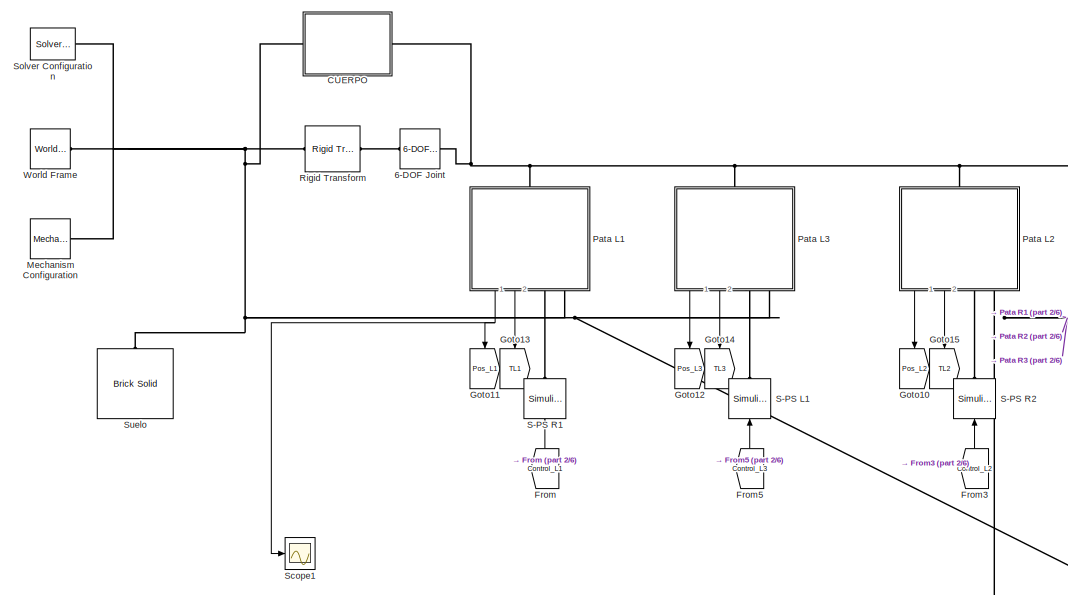
[diagram: root canvas - part 1/6, top center region]
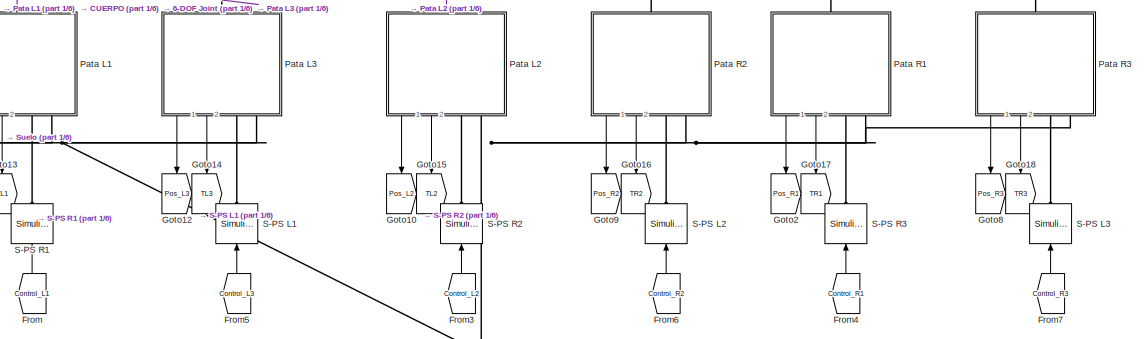
[diagram: root canvas - part 2/6, top right region]
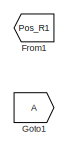
[diagram: root canvas - part 3/6, middle left region]
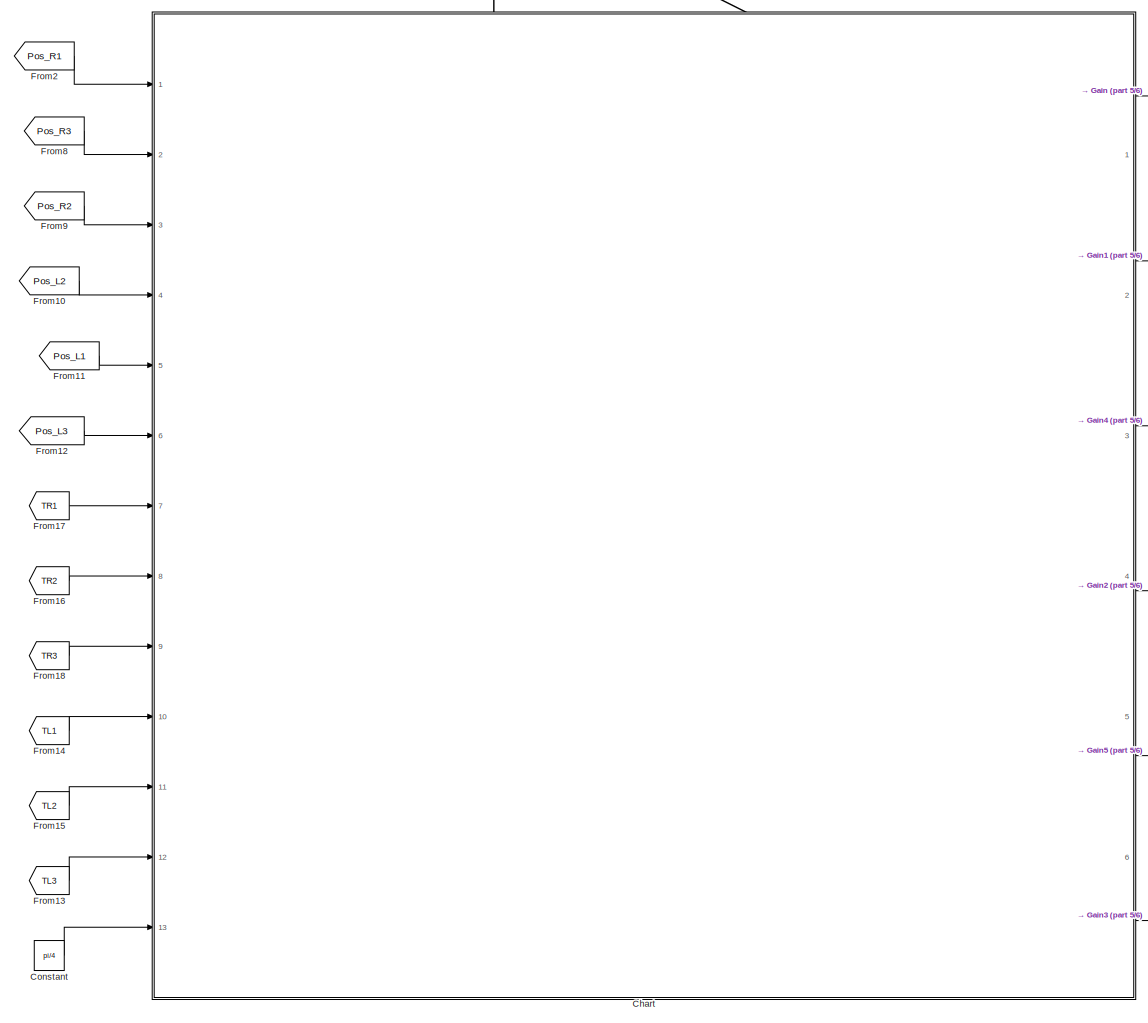
[diagram: root canvas - part 4/6, bottom right region]
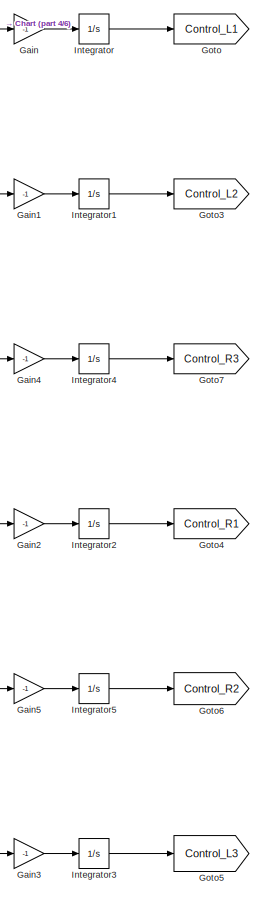
[diagram: root canvas - part 5/6, bottom right region]
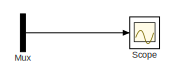
[diagram: root canvas - part 6/6, middle left region]
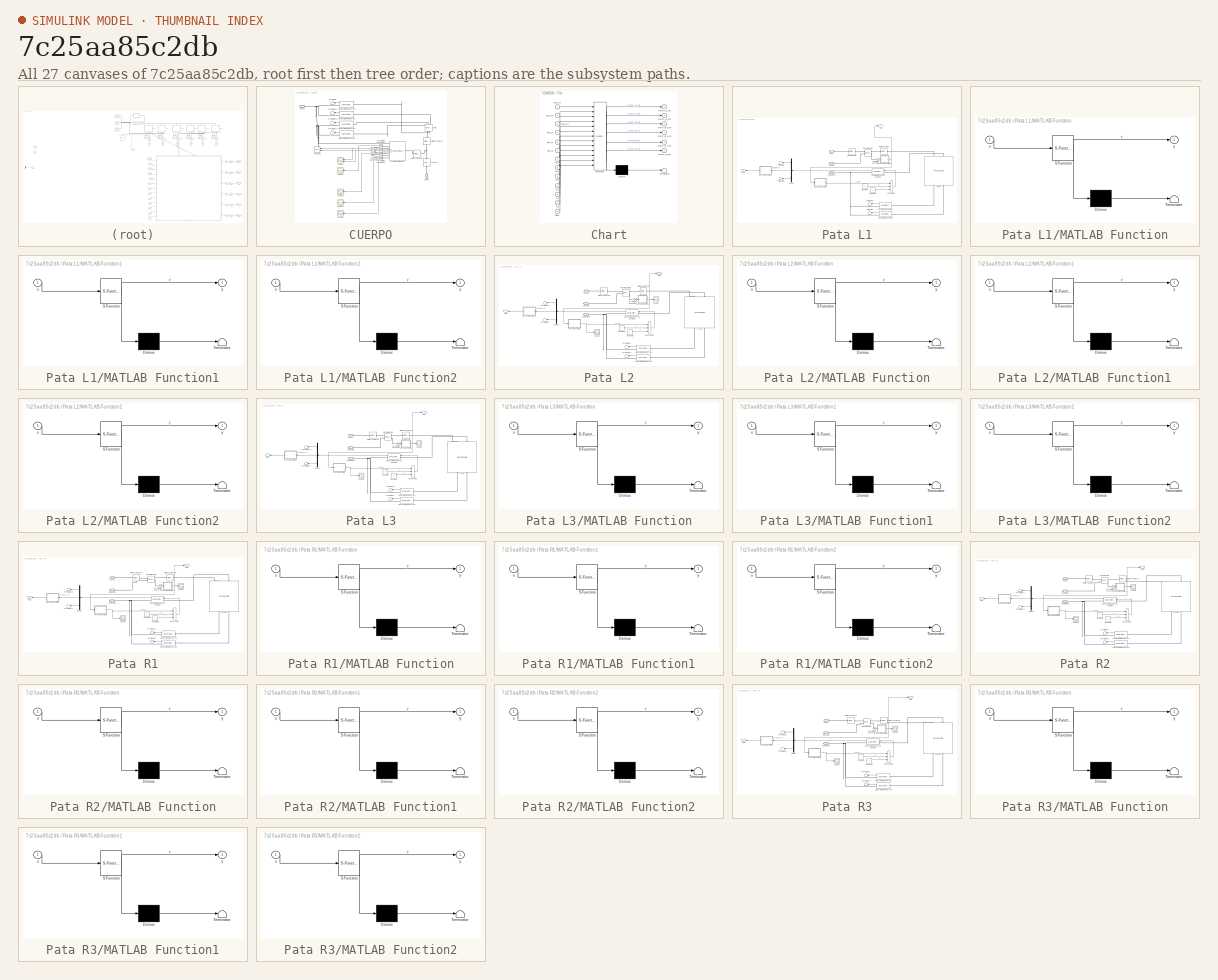
[diagram: thumbnail index - all 27 canvases of the model, root first then tree order]
MODEL slx_7c25aa85c2db
KIND model
CONFIG AbsTol = auto
CONFIG EnableMultiTasking = off
CONFIG FixedStep = auto
CONFIG MaxStep = auto
CONFIG MinStep = auto
CONFIG RelTol = 1e-3
CONFIG SampleTimeConstraint = Unconstrained
CONFIG Solver = VariableStepAuto
CONFIG SolverName = VariableStepAuto
CONFIG StartTime = 0.0
CONFIG StopTime = 10.0
BLOCK [Reference] 6-DOF Joint  REF=sm_lib/Joints/6-DOF Joint
  Ports = [0, 0, 0, 0, 0, 1, 1]
  SourceBlock = sm_lib/Joints/6-DOF Joint
  SourceProductBaseCode = MS
  SourceType = 6-DOF Joint
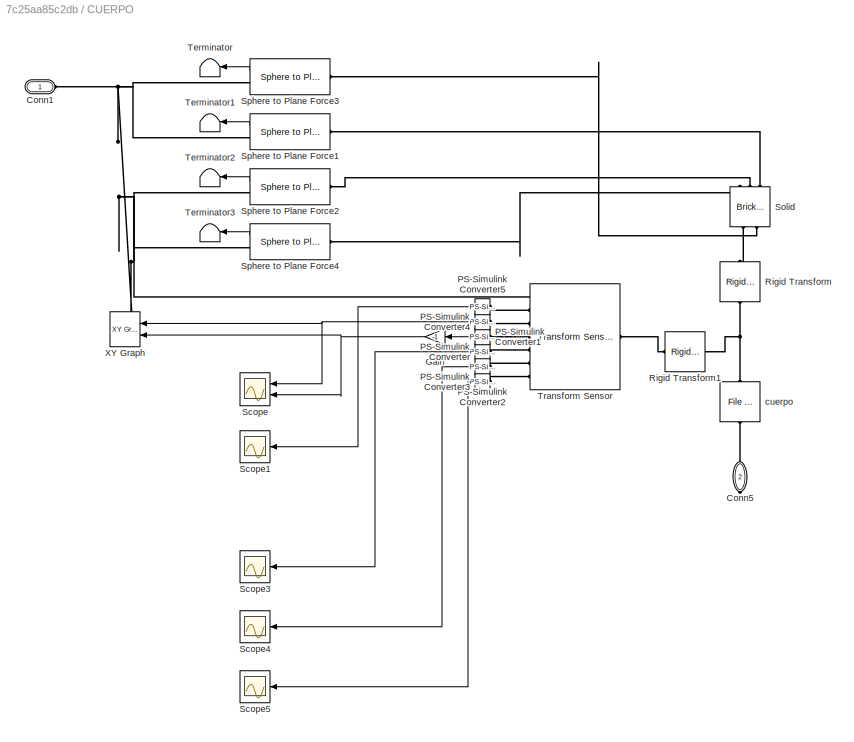
BLOCK [SubSystem] CUERPO
  Ports = [0, 0, 0, 0, 0, 1, 1]
  RequestExecContextInheritance = off
BLOCK [PMIOPort] CUERPO/Conn1
  Side = Left
BLOCK [PMIOPort] CUERPO/Conn5
  NameLocation = left
  Port = 2
  Side = Right
BLOCK [Gain] CUERPO/Gain
  Gain = -1
  NameLocation = top
BLOCK [Reference] CUERPO/PS-Simulink Converter  REF=nesl_utility/PS-Simulink
Converter
  NameLocation = top
  Ports = [0, 1, 0, 0, 0, 1]
  SourceBlock = nesl_utility/PS-Simulink\nConverter
  SourceProductBaseCode = SS
  SourceType = PS-Simulink\nConverter
BLOCK [Reference] CUERPO/PS-Simulink Converter1  REF=nesl_utility/PS-Simulink
Converter
  NameLocation = top
  Ports = [0, 1, 0, 0, 0, 1]
  SourceBlock = nesl_utility/PS-Simulink\nConverter
  SourceProductBaseCode = SS
  SourceType = PS-Simulink\nConverter
BLOCK [Reference] CUERPO/PS-Simulink Converter2  REF=nesl_utility/PS-Simulink
Converter
  NameLocation = top
  Ports = [0, 1, 0, 0, 0, 1]
  SourceBlock = nesl_utility/PS-Simulink\nConverter
  SourceProductBaseCode = SS
  SourceType = PS-Simulink\nConverter
BLOCK [Reference] CUERPO/PS-Simulink Converter3  REF=nesl_utility/PS-Simulink
Converter
  NameLocation = top
  Ports = [0, 1, 0, 0, 0, 1]
  SourceBlock = nesl_utility/PS-Simulink\nConverter
  SourceProductBaseCode = SS
  SourceType = PS-Simulink\nConverter
BLOCK [Reference] CUERPO/PS-Simulink Converter4  REF=nesl_utility/PS-Simulink
Converter
  NameLocation = top
  Ports = [0, 1, 0, 0, 0, 1]
  SourceBlock = nesl_utility/PS-Simulink\nConverter
  SourceProductBaseCode = SS
  SourceType = PS-Simulink\nConverter
BLOCK [Reference] CUERPO/PS-Simulink Converter5  REF=nesl_utility/PS-Simulink
Converter
  NameLocation = top
  Ports = [0, 1, 0, 0, 0, 1]
  SourceBlock = nesl_utility/PS-Simulink\nConverter
  SourceProductBaseCode = SS
  SourceType = PS-Simulink\nConverter
BLOCK [Reference] CUERPO/Rigid Transform  REF=sm_lib/Frames and
Transforms/Rigid
Transform
  NameLocation = right
  Ports = [0, 0, 0, 0, 0, 1, 1]
  SourceBlock = sm_lib/Frames and\nTransforms/Rigid\nTransform
  SourceProductBaseCode = MS
  SourceType = Rigid\nTransform
BLOCK [Reference] CUERPO/Rigid Transform1  REF=sm_lib/Frames and
Transforms/Rigid
Transform
  NameLocation = top
  Ports = [0, 0, 0, 0, 0, 1, 1]
  SourceBlock = sm_lib/Frames and\nTransforms/Rigid\nTransform
  SourceProductBaseCode = MS
  SourceType = Rigid\nTransform
BLOCK [Scope] CUERPO/Scope
  Floating = off
  NameLocation = top
  NumInputPorts = 2
  Ports = [2]
  ScopeSpecificationString = Simulink.scopes.TimeScopeBlockCfg('CurrentConfiguration', extmgr.ConfigurationSet(extmgr.Configuration('Core','General UI',true,'FigureColor',[1 1 1]),extmgr.Configuration('Core','Source UI',true),extmgr.Configuration('Sources','WiredSimulink',true,'DataLoggingVariableName','ScopeData1'),extmgr.Configuration('Visuals','Time Domain',true,'SerializedDisplays',{struct('MinYLimReal','-0.49233','MaxYLi...<+1476ch>
BLOCK [Scope] CUERPO/Scope1
  Floating = off
  NameLocation = top
  NumInputPorts = 1
  Ports = [1]
  ScopeSpecificationString = Simulink.scopes.TimeScopeBlockCfg('CurrentConfiguration', extmgr.ConfigurationSet(extmgr.Configuration('Core','General UI',true),extmgr.Configuration('Core','Source UI',true),extmgr.Configuration('Sources','WiredSimulink',true,'DataLoggingVariableName','ScopeData2'),extmgr.Configuration('Visuals','Time Domain',true,'SerializedDisplays',{struct('MinYLimReal','-0.00312','MaxYLimReal','0.01686','YLab...<+1381ch>
BLOCK [Scope] CUERPO/Scope3
  Floating = off
  NameLocation = top
  NumInputPorts = 1
  Ports = [1]
  ScopeSpecificationString = Simulink.scopes.TimeScopeBlockCfg('CurrentConfiguration', extmgr.ConfigurationSet(extmgr.Configuration('Core','General UI',true),extmgr.Configuration('Core','Source UI',true),extmgr.Configuration('Sources','WiredSimulink',true,'DataLoggingVariableName','ScopeData4'),extmgr.Configuration('Visuals','Time Domain',true,'SerializedDisplays',{struct('MinYLimReal','-0.02463','MaxYLimReal','0.0322','YLabe...<+1403ch>
BLOCK [Scope] CUERPO/Scope4
  Floating = off
  NameLocation = top
  NumInputPorts = 1
  Ports = [1]
  ScopeSpecificationString = Simulink.scopes.TimeScopeBlockCfg('CurrentConfiguration', extmgr.ConfigurationSet(extmgr.Configuration('Core','General UI',true),extmgr.Configuration('Core','Source UI',true),extmgr.Configuration('Sources','WiredSimulink',true,'DataLoggingVariableName','ScopeData5'),extmgr.Configuration('Visuals','Time Domain',true,'SerializedDisplays',{struct('MinYLimReal','-0.45489','MaxYLimReal','0.92755','YLab...<+1408ch>
BLOCK [Scope] CUERPO/Scope5
  Floating = off
  NameLocation = top
  NumInputPorts = 1
  Ports = [1]
  ScopeSpecificationString = Simulink.scopes.TimeScopeBlockCfg('CurrentConfiguration', extmgr.ConfigurationSet(extmgr.Configuration('Core','General UI',true),extmgr.Configuration('Core','Source UI',true),extmgr.Configuration('Sources','WiredSimulink',true,'DataLoggingVariableName','ScopeData6'),extmgr.Configuration('Visuals','Time Domain',true,'SerializedDisplays',{struct('MinYLimReal','-0.60444','MaxYLimReal','0.55672','YLab...<+1409ch>
BLOCK [Reference] CUERPO/Solid  REF=sm_lib/Body Elements/Brick Solid
  NameLocation = left
  Ports = [0, 0, 0, 0, 0, 3, 2]
  SourceBlock = sm_lib/Body Elements/Brick Solid
  SourceProductBaseCode = MS
  SourceType = Brick Solid
BLOCK [Reference] CUERPO/Sphere to Plane Force1  REF=Contact_Forces_Lib/3D/Sphere to Plane Force
  Ports = [0, 1, 0, 0, 0, 1, 1]
  SourceBlock = Contact_Forces_Lib/3D/Sphere to Plane Force
  SourceProductName = Simscape Multibody Contact Forces Library
  SourceType = Sphere to Plane Force
BLOCK [Reference] CUERPO/Sphere to Plane Force2  REF=Contact_Forces_Lib/3D/Sphere to Plane Force
  Ports = [0, 1, 0, 0, 0, 1, 1]
  SourceBlock = Contact_Forces_Lib/3D/Sphere to Plane Force
  SourceProductName = Simscape Multibody Contact Forces Library
  SourceType = Sphere to Plane Force
BLOCK [Reference] CUERPO/Sphere to Plane Force3  REF=Contact_Forces_Lib/3D/Sphere to Plane Force
  Ports = [0, 1, 0, 0, 0, 1, 1]
  SourceBlock = Contact_Forces_Lib/3D/Sphere to Plane Force
  SourceProductName = Simscape Multibody Contact Forces Library
  SourceType = Sphere to Plane Force
BLOCK [Reference] CUERPO/Sphere to Plane Force4  REF=Contact_Forces_Lib/3D/Sphere to Plane Force
  Ports = [0, 1, 0, 0, 0, 1, 1]
  SourceBlock = Contact_Forces_Lib/3D/Sphere to Plane Force
  SourceProductName = Simscape Multibody Contact Forces Library
  SourceType = Sphere to Plane Force
BLOCK [Terminator] CUERPO/Terminator
  NameLocation = top
BLOCK [Terminator] CUERPO/Terminator1
  NameLocation = top
BLOCK [Terminator] CUERPO/Terminator2
  NameLocation = top
BLOCK [Terminator] CUERPO/Terminator3
  NameLocation = top
BLOCK [Reference] CUERPO/Transform Sensor  REF=sm_lib/Frames and
Transforms/Transform
Sensor
  NameLocation = top
  Ports = [0, 0, 0, 0, 0, 1, 7]
  SourceBlock = sm_lib/Frames and\nTransforms/Transform\nSensor
  SourceProductBaseCode = MS
  SourceType = Transform\nSensor
BLOCK [Reference] CUERPO/XY Graph  REF=simulink/Sinks/XY Graph
  NameLocation = top
  Ports = [2]
  SourceBlock = simulink/Sinks/XY Graph
  SourceProductBaseCode = SL
  SourceType = XY scope.
BLOCK [Reference] CUERPO/cuerpo  REF=sm_lib/Body Elements/File Solid
  NameLocation = left
  Ports = [0, 0, 0, 0, 0, 1, 1]
  SourceBlock = sm_lib/Body Elements/File Solid
  SourceProductBaseCode = MS
  SourceType = File Solid
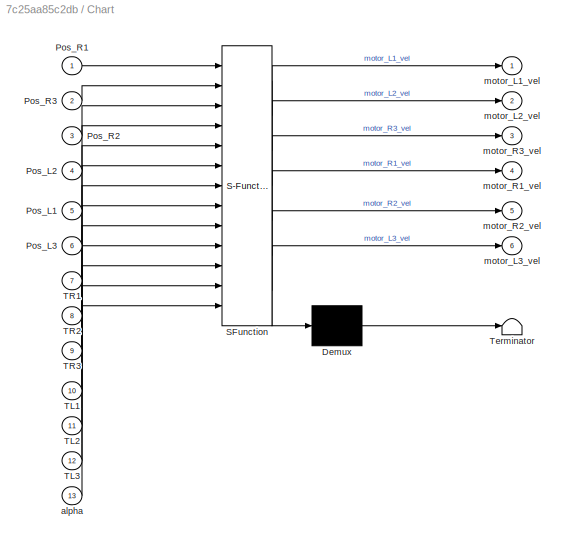
BLOCK [SubSystem] Chart
  ErrorFcn = Stateflow.Translate.translate
  PermitHierarchicalResolution = ExplicitOnly
  Ports = [13, 6]
  RequestExecContextInheritance = off
  SFBlockType = Chart
  TreatAsAtomicUnit = on
BLOCK [Demux] Chart/ Demux 
  Outputs = 1
  Ports = [1, 1]
BLOCK [S-Function] Chart/ SFunction 
  EnableBusSupport = on
  FunctionName = sf_sfun
  PortCounts = [13 7]
  Ports = [13, 7]
  SFcnIsStateOwnerBlock = off
  SFunctionDeploymentMode = off
  Tag = Stateflow S-Function 14
BLOCK [Terminator] Chart/ Terminator 
BLOCK [Inport] Chart/Pos_L1
  Port = 5
BLOCK [Inport] Chart/Pos_L2
  Port = 4
BLOCK [Inport] Chart/Pos_L3
  Port = 6
BLOCK [Inport] Chart/Pos_R1
BLOCK [Inport] Chart/Pos_R2
  Port = 3
BLOCK [Inport] Chart/Pos_R3
  Port = 2
BLOCK [Inport] Chart/TL1
  Port = 10
BLOCK [Inport] Chart/TL2
  Port = 11
BLOCK [Inport] Chart/TL3
  Port = 12
BLOCK [Inport] Chart/TR1
  Port = 7
BLOCK [Inport] Chart/TR2
  Port = 8
BLOCK [Inport] Chart/TR3
  Port = 9
BLOCK [Inport] Chart/alpha
  Port = 13
BLOCK [Outport] Chart/motor_L1_vel
  VectorParamsAs1DForOutWhenUnconnected = off
BLOCK [Outport] Chart/motor_L2_vel
  Port = 2
  VectorParamsAs1DForOutWhenUnconnected = off
BLOCK [Outport] Chart/motor_L3_vel
  Port = 6
  VectorParamsAs1DForOutWhenUnconnected = off
BLOCK [Outport] Chart/motor_R1_vel
  Port = 4
  VectorParamsAs1DForOutWhenUnconnected = off
BLOCK [Outport] Chart/motor_R2_vel
  Port = 5
  VectorParamsAs1DForOutWhenUnconnected = off
BLOCK [Outport] Chart/motor_R3_vel
  Port = 3
  VectorParamsAs1DForOutWhenUnconnected = off
BLOCK [Constant] Constant
  Value = pi/4
BLOCK [From] From
  GotoTag = Control_L1
  NameLocation = right
BLOCK [From] From1
  Commented = on
  GotoTag = Pos_R1
BLOCK [From] From10
  GotoTag = Pos_L2
BLOCK [From] From11
  GotoTag = Pos_L1
BLOCK [From] From12
  GotoTag = Pos_L3
BLOCK [From] From13
  GotoTag = TL3
BLOCK [From] From14
  GotoTag = TL1
BLOCK [From] From15
  GotoTag = TL2
BLOCK [From] From16
  GotoTag = TR2
BLOCK [From] From17
  GotoTag = TR1
BLOCK [From] From18
  GotoTag = TR3
BLOCK [From] From2
  GotoTag = Pos_R1
BLOCK [From] From3
  GotoTag = Control_L2
  NameLocation = right
BLOCK [From] From4
  GotoTag = Control_R1
  NameLocation = right
BLOCK [From] From5
  GotoTag = Control_L3
  NameLocation = right
BLOCK [From] From6
  GotoTag = Control_R2
  NameLocation = right
BLOCK [From] From7
  GotoTag = Control_R3
  NameLocation = right
BLOCK [From] From8
  GotoTag = Pos_R3
BLOCK [From] From9
  GotoTag = Pos_R2
BLOCK [Gain] Gain
  Gain = -1
BLOCK [Gain] Gain1
  Gain = -1
BLOCK [Gain] Gain2
  Gain = -1
BLOCK [Gain] Gain3
  Gain = -1
BLOCK [Gain] Gain4
  Gain = -1
BLOCK [Gain] Gain5
  Gain = -1
BLOCK [Goto] Goto
  GotoTag = Control_L1
BLOCK [Goto] Goto1
  Commented = on
BLOCK [Goto] Goto10
  GotoTag = Pos_L2
  NameLocation = left
BLOCK [Goto] Goto11
  GotoTag = Pos_L1
  NameLocation = left
BLOCK [Goto] Goto12
  GotoTag = Pos_L3
  NameLocation = left
BLOCK [Goto] Goto13
  GotoTag = TL1
  NameLocation = left
BLOCK [Goto] Goto14
  GotoTag = TL3
  NameLocation = left
BLOCK [Goto] Goto15
  GotoTag = TL2
  NameLocation = left
BLOCK [Goto] Goto16
  GotoTag = TR2
  NameLocation = left
BLOCK [Goto] Goto17
  GotoTag = TR1
  NameLocation = left
BLOCK [Goto] Goto18
  GotoTag = TR3
  NameLocation = left
BLOCK [Goto] Goto2
  GotoTag = Pos_R1
  NameLocation = left
BLOCK [Goto] Goto3
  GotoTag = Control_L2
BLOCK [Goto] Goto4
  GotoTag = Control_R1
BLOCK [Goto] Goto5
  GotoTag = Control_L3
BLOCK [Goto] Goto6
  GotoTag = Control_R2
BLOCK [Goto] Goto7
  GotoTag = Control_R3
BLOCK [Goto] Goto8
  GotoTag = Pos_R3
  NameLocation = left
BLOCK [Goto] Goto9
  GotoTag = Pos_R2
  NameLocation = left
BLOCK [Integrator] Integrator
  Ports = [1, 1]
BLOCK [Integrator] Integrator1
  Ports = [1, 1]
BLOCK [Integrator] Integrator2
  Ports = [1, 1]
BLOCK [Integrator] Integrator3
  Ports = [1, 1]
BLOCK [Integrator] Integrator4
  Ports = [1, 1]
BLOCK [Integrator] Integrator5
  Ports = [1, 1]
BLOCK [Reference] Mechanism Configuration  REF=sm_lib/Utilities/Mechanism
Configuration
  Ports = [0, 0, 0, 0, 0, 0, 1]
  SourceBlock = sm_lib/Utilities/Mechanism\nConfiguration
  SourceProductBaseCode = MS
  SourceType = Mechanism\nConfiguration
BLOCK [Mux] Mux
  Commented = on
  DisplayOption = bar
  Inputs = 2
  Ports = [2, 1]
BLOCK [SubSystem] Pata L1
  NameLocation = left
  Ports = [0, 2, 0, 0, 0, 1, 2]
  RequestExecContextInheritance = off
BLOCK [BusCreator] Pata L1/Bus Creator
  DisplayOption = bar
  InheritFromInputs = on
  Inputs = 3
  Ports = [3, 1]
BLOCK [Reference] Pata L1/C-Leg  REF=sm_lib/Body Elements/Revolved Solid
  NameLocation = right
  Ports = [0, 0, 0, 0, 0, 2, 2]
  SourceBlock = sm_lib/Body Elements/Revolved Solid
  SourceProductBaseCode = MS
  SourceType = Revolved Solid
BLOCK [PMIOPort] Pata L1/Conn1
  Port = 2
  Side = Left
BLOCK [Constant] Pata L1/Constant1
  Value = 0
BLOCK [Constant] Pata L1/Constant2
  Value = 0
BLOCK [PMIOPort] Pata L1/ContactoR1
  Port = 3
  Side = Right
BLOCK [PMIOPort] Pata L1/Control R1
  Side = Right
BLOCK [Demux] Pata L1/Demux
  NameLocation = top
  Outputs = 3
  Ports = [1, 3]
BLOCK [SubSystem] Pata L1/MATLAB Function
  ErrorFcn = Stateflow.Translate.translate
  PermitHierarchicalResolution = ExplicitOnly
  Ports = [1, 1]
  RequestExecContextInheritance = off
  SFBlockType = MATLAB Function
  TreatAsAtomicUnit = on
BLOCK [Demux] Pata L1/MATLAB Function/ Demux 
  Outputs = 1
  Ports = [1, 1]
BLOCK [S-Function] Pata L1/MATLAB Function/ SFunction 
  EnableBusSupport = on
  FunctionName = sf_sfun
  PortCounts = [1 2]
  Ports = [1, 2]
  SFcnIsStateOwnerBlock = off
  SFunctionDeploymentMode = off
  Tag = Stateflow S-Function 2
BLOCK [Terminator] Pata L1/MATLAB Function/ Terminator 
BLOCK [Inport] Pata L1/MATLAB Function/u
BLOCK [Outport] Pata L1/MATLAB Function/y
  VectorParamsAs1DForOutWhenUnconnected = off
BLOCK [SubSystem] Pata L1/MATLAB Function1
  ErrorFcn = Stateflow.Translate.translate
  PermitHierarchicalResolution = ExplicitOnly
  Ports = [1, 1]
  RequestExecContextInheritance = off
  SFBlockType = MATLAB Function
  TreatAsAtomicUnit = on
BLOCK [Demux] Pata L1/MATLAB Function1/ Demux 
  Outputs = 1
  Ports = [1, 1]
BLOCK [S-Function] Pata L1/MATLAB Function1/ SFunction 
  EnableBusSupport = on
  FunctionName = sf_sfun
  PortCounts = [1 2]
  Ports = [1, 2]
  SFcnIsStateOwnerBlock = off
  SFunctionDeploymentMode = off
  Tag = Stateflow S-Function 1
BLOCK [Terminator] Pata L1/MATLAB Function1/ Terminator 
BLOCK [Inport] Pata L1/MATLAB Function1/u
BLOCK [Outport] Pata L1/MATLAB Function1/y
  VectorParamsAs1DForOutWhenUnconnected = off
BLOCK [SubSystem] Pata L1/MATLAB Function2
  ErrorFcn = Stateflow.Translate.translate
  NameLocation = top
  PermitHierarchicalResolution = ExplicitOnly
  Ports = [1, 1]
  RequestExecContextInheritance = off
  SFBlockType = MATLAB Function
  TreatAsAtomicUnit = on
BLOCK [Demux] Pata L1/MATLAB Function2/ Demux 
  Outputs = 1
  Ports = [1, 1]
BLOCK [S-Function] Pata L1/MATLAB Function2/ SFunction 
  EnableBusSupport = on
  FunctionName = sf_sfun
  PortCounts = [1 2]
  Ports = [1, 2]
  SFcnIsStateOwnerBlock = off
  SFunctionDeploymentMode = off
  Tag = Stateflow S-Function 13
BLOCK [Terminator] Pata L1/MATLAB Function2/ Terminator 
BLOCK [Inport] Pata L1/MATLAB Function2/u
BLOCK [Outport] Pata L1/MATLAB Function2/y
  VectorParamsAs1DForOutWhenUnconnected = off
BLOCK [Outport] Pata L1/Out1
  VectorParamsAs1DForOutWhenUnconnected = off
BLOCK [Outport] Pata L1/Out2
  NameLocation = top
  Port = 2
  VectorParamsAs1DForOutWhenUnconnected = off
BLOCK [Reference] Pata L1/PS-Simulink Converter  REF=nesl_utility/PS-Simulink
Converter
  Ports = [0, 1, 0, 0, 0, 1]
  SourceBlock = nesl_utility/PS-Simulink\nConverter
  SourceProductBaseCode = SS
  SourceType = PS-Simulink\nConverter
BLOCK [Reference] Pata L1/Revolute Joint  REF=sm_lib/Joints/Revolute Joint
  Ports = [0, 0, 0, 0, 0, 2, 2]
  SourceBlock = sm_lib/Joints/Revolute Joint
  SourceProductBaseCode = MS
  SourceType = Revolute Joint
BLOCK [Reference] Pata L1/Rigid Transform  REF=sm_lib/Frames and
Transforms/Rigid
Transform
  Ports = [0, 0, 0, 0, 0, 1, 1]
  SourceBlock = sm_lib/Frames and\nTransforms/Rigid\nTransform
  SourceProductBaseCode = MS
  SourceType = Rigid\nTransform
BLOCK [Reference] Pata L1/Rigid Transform1  REF=sm_lib/Frames and
Transforms/Rigid
Transform
  NameLocation = top
  Ports = [0, 0, 0, 0, 0, 1, 1]
  SourceBlock = sm_lib/Frames and\nTransforms/Rigid\nTransform
  SourceProductBaseCode = MS
  SourceType = Rigid\nTransform
BLOCK [Reference] Pata L1/Sphere to Plane Force Enabled  REF=Contact_Forces_Lib/3D/Sphere to Plane Force
Enabled
  Ports = [1, 1, 0, 0, 0, 1, 1]
  SourceBlock = Contact_Forces_Lib/3D/Sphere to Plane Force\nEnabled
  SourceProductName = Simscape Multibody Contact Forces Library
  SourceType = Sphere to Plane Force
BLOCK [Reference] Pata L1/Sphere to Plane Force2  REF=Contact_Forces_Lib/3D/Sphere to Plane Force
  Ports = [0, 1, 0, 0, 0, 1, 1]
  SourceBlock = Contact_Forces_Lib/3D/Sphere to Plane Force
  SourceProductName = Simscape Multibody Contact Forces Library
  SourceType = Sphere to Plane Force
BLOCK [Reference] Pata L1/Sphere to Plane Force3  REF=Contact_Forces_Lib/3D/Sphere to Plane Force
  Ports = [0, 1, 0, 0, 0, 1, 1]
  SourceBlock = Contact_Forces_Lib/3D/Sphere to Plane Force
  SourceProductName = Simscape Multibody Contact Forces Library
  SourceType = Sphere to Plane Force
BLOCK [Terminator] Pata L1/Terminator1
  NameLocation = top
BLOCK [Terminator] Pata L1/Terminator2
  NameLocation = top
BLOCK [Terminator] Pata L1/Terminator3
  NameLocation = top
BLOCK [Terminator] Pata L1/Terminator4
  NameLocation = top
BLOCK [SubSystem] Pata L2
  NameLocation = left
  Ports = [0, 2, 0, 0, 0, 1, 2]
  RequestExecContextInheritance = off
BLOCK [BusCreator] Pata L2/Bus Creator
  DisplayOption = bar
  InheritFromInputs = on
  Inputs = 3
  Ports = [3, 1]
BLOCK [Reference] Pata L2/C-Leg  REF=sm_lib/Body Elements/Revolved Solid
  NameLocation = right
  Ports = [0, 0, 0, 0, 0, 2, 2]
  SourceBlock = sm_lib/Body Elements/Revolved Solid
  SourceProductBaseCode = MS
  SourceType = Revolved Solid
BLOCK [PMIOPort] Pata L2/Conn1
  Port = 2
  Side = Left
BLOCK [Constant] Pata L2/Constant1
  Value = 0
BLOCK [Constant] Pata L2/Constant2
  Value = 0
BLOCK [PMIOPort] Pata L2/ContactoR1
  Port = 3
  Side = Right
BLOCK [PMIOPort] Pata L2/Control R1
  Side = Right
BLOCK [Demux] Pata L2/Demux
  NameLocation = top
  Outputs = 3
  Ports = [1, 3]
BLOCK [SubSystem] Pata L2/MATLAB Function
  ErrorFcn = Stateflow.Translate.translate
  PermitHierarchicalResolution = ExplicitOnly
  Ports = [1, 1]
  RequestExecContextInheritance = off
  SFBlockType = MATLAB Function
  TreatAsAtomicUnit = on
BLOCK [Demux] Pata L2/MATLAB Function/ Demux 
  Outputs = 1
  Ports = [1, 1]
BLOCK [S-Function] Pata L2/MATLAB Function/ SFunction 
  EnableBusSupport = on
  FunctionName = sf_sfun
  PortCounts = [1 2]
  Ports = [1, 2]
  SFcnIsStateOwnerBlock = off
  SFunctionDeploymentMode = off
  Tag = Stateflow S-Function 5
BLOCK [Terminator] Pata L2/MATLAB Function/ Terminator 
BLOCK [Inport] Pata L2/MATLAB Function/u
BLOCK [Outport] Pata L2/MATLAB Function/y
  VectorParamsAs1DForOutWhenUnconnected = off
BLOCK [SubSystem] Pata L2/MATLAB Function1
  ErrorFcn = Stateflow.Translate.translate
  PermitHierarchicalResolution = ExplicitOnly
  Ports = [1, 1]
  RequestExecContextInheritance = off
  SFBlockType = MATLAB Function
  TreatAsAtomicUnit = on
BLOCK [Demux] Pata L2/MATLAB Function1/ Demux 
  Outputs = 1
  Ports = [1, 1]
BLOCK [S-Function] Pata L2/MATLAB Function1/ SFunction 
  EnableBusSupport = on
  FunctionName = sf_sfun
  PortCounts = [1 2]
  Ports = [1, 2]
  SFcnIsStateOwnerBlock = off
  SFunctionDeploymentMode = off
  Tag = Stateflow S-Function 6
BLOCK [Terminator] Pata L2/MATLAB Function1/ Terminator 
BLOCK [Inport] Pata L2/MATLAB Function1/u
BLOCK [Outport] Pata L2/MATLAB Function1/y
  VectorParamsAs1DForOutWhenUnconnected = off
BLOCK [SubSystem] Pata L2/MATLAB Function2
  ErrorFcn = Stateflow.Translate.translate
  NameLocation = top
  PermitHierarchicalResolution = ExplicitOnly
  Ports = [1, 1]
  RequestExecContextInheritance = off
  SFBlockType = MATLAB Function
  TreatAsAtomicUnit = on
BLOCK [Demux] Pata L2/MATLAB Function2/ Demux 
  Outputs = 1
  Ports = [1, 1]
BLOCK [S-Function] Pata L2/MATLAB Function2/ SFunction 
  EnableBusSupport = on
  FunctionName = sf_sfun
  PortCounts = [1 2]
  Ports = [1, 2]
  SFcnIsStateOwnerBlock = off
  SFunctionDeploymentMode = off
  Tag = Stateflow S-Function 16
BLOCK [Terminator] Pata L2/MATLAB Function2/ Terminator 
BLOCK [Inport] Pata L2/MATLAB Function2/u
BLOCK [Outport] Pata L2/MATLAB Function2/y
  VectorParamsAs1DForOutWhenUnconnected = off
BLOCK [Outport] Pata L2/Out1
  VectorParamsAs1DForOutWhenUnconnected = off
BLOCK [Outport] Pata L2/Out2
  NameLocation = top
  Port = 2
  VectorParamsAs1DForOutWhenUnconnected = off
BLOCK [Reference] Pata L2/PS-Simulink Converter  REF=nesl_utility/PS-Simulink
Converter
  Ports = [0, 1, 0, 0, 0, 1]
  SourceBlock = nesl_utility/PS-Simulink\nConverter
  SourceProductBaseCode = SS
  SourceType = PS-Simulink\nConverter
BLOCK [Reference] Pata L2/Revolute Joint2  REF=sm_lib/Joints/Revolute Joint
  Ports = [0, 0, 0, 0, 0, 2, 2]
  SourceBlock = sm_lib/Joints/Revolute Joint
  SourceProductBaseCode = MS
  SourceType = Revolute Joint
BLOCK [Reference] Pata L2/Rigid Transform1  REF=sm_lib/Frames and
Transforms/Rigid
Transform
  Ports = [0, 0, 0, 0, 0, 1, 1]
  SourceBlock = sm_lib/Frames and\nTransforms/Rigid\nTransform
  SourceProductBaseCode = MS
  SourceType = Rigid\nTransform
BLOCK [Reference] Pata L2/Rigid Transform4  REF=sm_lib/Frames and
Transforms/Rigid
Transform
  NameLocation = top
  Ports = [0, 0, 0, 0, 0, 1, 1]
  SourceBlock = sm_lib/Frames and\nTransforms/Rigid\nTransform
  SourceProductBaseCode = MS
  SourceType = Rigid\nTransform
BLOCK [Scope] Pata L2/Scope
  Floating = off
  NumInputPorts = 1
  Ports = [1]
  ScopeSpecificationString = Simulink.scopes.TimeScopeBlockCfg('CurrentConfiguration', extmgr.ConfigurationSet(extmgr.Configuration('Core','General UI',true),extmgr.Configuration('Core','Source UI',true),extmgr.Configuration('Sources','WiredSimulink',true),extmgr.Configuration('Visuals','Time Domain',true,'SerializedDisplays',{struct('MinYLimReal','-0.7853','MaxYLimReal','7.06771','YLabelReal','','MinYLimMag','0.00000','MaxYL...<+1639ch>
BLOCK [Scope] Pata L2/Scope1
  Floating = off
  NumInputPorts = 1
  Ports = [1]
  ScopeSpecificationString = Simulink.scopes.TimeScopeBlockCfg('CurrentConfiguration', extmgr.ConfigurationSet(extmgr.Configuration('Core','General UI',true),extmgr.Configuration('Core','Source UI',true),extmgr.Configuration('Sources','WiredSimulink',true,'DataLoggingVariableName','ScopeData1'),extmgr.Configuration('Visuals','Time Domain',true,'SerializedDisplays',{struct('MinYLimReal','-0.125','MaxYLimReal','1.125','YLabelRe...<+1671ch>
BLOCK [Reference] Pata L2/Sphere to Plane Force Enabled  REF=Contact_Forces_Lib/3D/Sphere to Plane Force
Enabled
  Ports = [1, 1, 0, 0, 0, 1, 1]
  SourceBlock = Contact_Forces_Lib/3D/Sphere to Plane Force\nEnabled
  SourceProductName = Simscape Multibody Contact Forces Library
  SourceType = Sphere to Plane Force
BLOCK [Reference] Pata L2/Sphere to Plane Force2  REF=Contact_Forces_Lib/3D/Sphere to Plane Force
  Ports = [0, 1, 0, 0, 0, 1, 1]
  SourceBlock = Contact_Forces_Lib/3D/Sphere to Plane Force
  SourceProductName = Simscape Multibody Contact Forces Library
  SourceType = Sphere to Plane Force
BLOCK [Reference] Pata L2/Sphere to Plane Force3  REF=Contact_Forces_Lib/3D/Sphere to Plane Force
  Ports = [0, 1, 0, 0, 0, 1, 1]
  SourceBlock = Contact_Forces_Lib/3D/Sphere to Plane Force
  SourceProductName = Simscape Multibody Contact Forces Library
  SourceType = Sphere to Plane Force
BLOCK [Terminator] Pata L2/Terminator1
  NameLocation = top
BLOCK [Terminator] Pata L2/Terminator2
  NameLocation = top
BLOCK [Terminator] Pata L2/Terminator3
  NameLocation = top
BLOCK [Terminator] Pata L2/Terminator4
  NameLocation = top
BLOCK [SubSystem] Pata L3
  NameLocation = left
  Ports = [0, 2, 0, 0, 0, 1, 2]
  RequestExecContextInheritance = off
BLOCK [BusCreator] Pata L3/Bus Creator
  DisplayOption = bar
  InheritFromInputs = on
  Inputs = 3
  Ports = [3, 1]
BLOCK [Reference] Pata L3/C-Leg  REF=sm_lib/Body Elements/Revolved Solid
  NameLocation = right
  Ports = [0, 0, 0, 0, 0, 2, 2]
  SourceBlock = sm_lib/Body Elements/Revolved Solid
  SourceProductBaseCode = MS
  SourceType = Revolved Solid
BLOCK [PMIOPort] Pata L3/Conn1
  Port = 2
  Side = Left
BLOCK [Constant] Pata L3/Constant1
  Value = 0
BLOCK [Constant] Pata L3/Constant2
  Value = 0
BLOCK [PMIOPort] Pata L3/ContactoR1
  Port = 3
  Side = Right
BLOCK [PMIOPort] Pata L3/Control R1
  Side = Right
BLOCK [Demux] Pata L3/Demux
  NameLocation = top
  Outputs = 3
  Ports = [1, 3]
BLOCK [SubSystem] Pata L3/MATLAB Function
  ErrorFcn = Stateflow.Translate.translate
  PermitHierarchicalResolution = ExplicitOnly
  Ports = [1, 1]
  RequestExecContextInheritance = off
  SFBlockType = MATLAB Function
  TreatAsAtomicUnit = on
BLOCK [Demux] Pata L3/MATLAB Function/ Demux 
  Outputs = 1
  Ports = [1, 1]
BLOCK [S-Function] Pata L3/MATLAB Function/ SFunction 
  EnableBusSupport = on
  FunctionName = sf_sfun
  PortCounts = [1 2]
  Ports = [1, 2]
  SFcnIsStateOwnerBlock = off
  SFunctionDeploymentMode = off
  Tag = Stateflow S-Function 3
BLOCK [Terminator] Pata L3/MATLAB Function/ Terminator 
BLOCK [Inport] Pata L3/MATLAB Function/u
BLOCK [Outport] Pata L3/MATLAB Function/y
  VectorParamsAs1DForOutWhenUnconnected = off
BLOCK [SubSystem] Pata L3/MATLAB Function1
  ErrorFcn = Stateflow.Translate.translate
  PermitHierarchicalResolution = ExplicitOnly
  Ports = [1, 1]
  RequestExecContextInheritance = off
  SFBlockType = MATLAB Function
  TreatAsAtomicUnit = on
BLOCK [Demux] Pata L3/MATLAB Function1/ Demux 
  Outputs = 1
  Ports = [1, 1]
BLOCK [S-Function] Pata L3/MATLAB Function1/ SFunction 
  EnableBusSupport = on
  FunctionName = sf_sfun
  PortCounts = [1 2]
  Ports = [1, 2]
  SFcnIsStateOwnerBlock = off
  SFunctionDeploymentMode = off
  Tag = Stateflow S-Function 4
BLOCK [Terminator] Pata L3/MATLAB Function1/ Terminator 
BLOCK [Inport] Pata L3/MATLAB Function1/u
BLOCK [Outport] Pata L3/MATLAB Function1/y
  VectorParamsAs1DForOutWhenUnconnected = off
BLOCK [SubSystem] Pata L3/MATLAB Function2
  ErrorFcn = Stateflow.Translate.translate
  NameLocation = top
  PermitHierarchicalResolution = ExplicitOnly
  Ports = [1, 1]
  RequestExecContextInheritance = off
  SFBlockType = MATLAB Function
  TreatAsAtomicUnit = on
BLOCK [Demux] Pata L3/MATLAB Function2/ Demux 
  Outputs = 1
  Ports = [1, 1]
BLOCK [S-Function] Pata L3/MATLAB Function2/ SFunction 
  EnableBusSupport = on
  FunctionName = sf_sfun
  PortCounts = [1 2]
  Ports = [1, 2]
  SFcnIsStateOwnerBlock = off
  SFunctionDeploymentMode = off
  Tag = Stateflow S-Function 15
BLOCK [Terminator] Pata L3/MATLAB Function2/ Terminator 
BLOCK [Inport] Pata L3/MATLAB Function2/u
BLOCK [Outport] Pata L3/MATLAB Function2/y
  VectorParamsAs1DForOutWhenUnconnected = off
BLOCK [Outport] Pata L3/Out1
  VectorParamsAs1DForOutWhenUnconnected = off
BLOCK [Outport] Pata L3/Out2
  NameLocation = top
  Port = 2
  VectorParamsAs1DForOutWhenUnconnected = off
BLOCK [Reference] Pata L3/PS-Simulink Converter  REF=nesl_utility/PS-Simulink
Converter
  Ports = [0, 1, 0, 0, 0, 1]
  SourceBlock = nesl_utility/PS-Simulink\nConverter
  SourceProductBaseCode = SS
  SourceType = PS-Simulink\nConverter
BLOCK [Reference] Pata L3/Revolute Joint1  REF=sm_lib/Joints/Revolute Joint
  Ports = [0, 0, 0, 0, 0, 2, 2]
  SourceBlock = sm_lib/Joints/Revolute Joint
  SourceProductBaseCode = MS
  SourceType = Revolute Joint
BLOCK [Reference] Pata L3/Rigid Transform2  REF=sm_lib/Frames and
Transforms/Rigid
Transform
  Ports = [0, 0, 0, 0, 0, 1, 1]
  SourceBlock = sm_lib/Frames and\nTransforms/Rigid\nTransform
  SourceProductBaseCode = MS
  SourceType = Rigid\nTransform
BLOCK [Reference] Pata L3/Rigid Transform3  REF=sm_lib/Frames and
Transforms/Rigid
Transform
  NameLocation = top
  Ports = [0, 0, 0, 0, 0, 1, 1]
  SourceBlock = sm_lib/Frames and\nTransforms/Rigid\nTransform
  SourceProductBaseCode = MS
  SourceType = Rigid\nTransform
BLOCK [Scope] Pata L3/Scope
  Floating = off
  NumInputPorts = 1
  Ports = [1]
  ScopeSpecificationString = Simulink.scopes.TimeScopeBlockCfg('CurrentConfiguration', extmgr.ConfigurationSet(extmgr.Configuration('Core','General UI',true),extmgr.Configuration('Core','Source UI',true),extmgr.Configuration('Sources','WiredSimulink',true),extmgr.Configuration('Visuals','Time Domain',true,'SerializedDisplays',{struct('MinYLimReal','-0.78533','MaxYLimReal','7.06799','YLabelReal','','MinYLimMag','0.00000','MaxY...<+1641ch>
BLOCK [Scope] Pata L3/Scope1
  Floating = off
  NumInputPorts = 1
  Ports = [1]
  ScopeSpecificationString = Simulink.scopes.TimeScopeBlockCfg('CurrentConfiguration', extmgr.ConfigurationSet(extmgr.Configuration('Core','General UI',true),extmgr.Configuration('Core','Source UI',true),extmgr.Configuration('Sources','WiredSimulink',true,'DataLoggingVariableName','ScopeData1'),extmgr.Configuration('Visuals','Time Domain',true,'SerializedDisplays',{struct('MinYLimReal','-0.125','MaxYLimReal','1.125','YLabelRe...<+1681ch>
BLOCK [Reference] Pata L3/Sphere to Plane Force Enabled  REF=Contact_Forces_Lib/3D/Sphere to Plane Force
Enabled
  Ports = [1, 1, 0, 0, 0, 1, 1]
  SourceBlock = Contact_Forces_Lib/3D/Sphere to Plane Force\nEnabled
  SourceProductName = Simscape Multibody Contact Forces Library
  SourceType = Sphere to Plane Force
BLOCK [Reference] Pata L3/Sphere to Plane Force2  REF=Contact_Forces_Lib/3D/Sphere to Plane Force
  Ports = [0, 1, 0, 0, 0, 1, 1]
  SourceBlock = Contact_Forces_Lib/3D/Sphere to Plane Force
  SourceProductName = Simscape Multibody Contact Forces Library
  SourceType = Sphere to Plane Force
BLOCK [Reference] Pata L3/Sphere to Plane Force3  REF=Contact_Forces_Lib/3D/Sphere to Plane Force
  Ports = [0, 1, 0, 0, 0, 1, 1]
  SourceBlock = Contact_Forces_Lib/3D/Sphere to Plane Force
  SourceProductName = Simscape Multibody Contact Forces Library
  SourceType = Sphere to Plane Force
BLOCK [Terminator] Pata L3/Terminator1
  NameLocation = top
BLOCK [Terminator] Pata L3/Terminator2
  NameLocation = top
BLOCK [Terminator] Pata L3/Terminator3
  NameLocation = top
BLOCK [Terminator] Pata L3/Terminator4
  NameLocation = top
BLOCK [SubSystem] Pata R1
  NameLocation = left
  Ports = [0, 2, 0, 0, 0, 1, 2]
  RequestExecContextInheritance = off
BLOCK [BusCreator] Pata R1/Bus Creator
  DisplayOption = bar
  InheritFromInputs = on
  Inputs = 3
  Ports = [3, 1]
BLOCK [Reference] Pata R1/C-Leg  REF=sm_lib/Body Elements/Revolved Solid
  NameLocation = right
  Ports = [0, 0, 0, 0, 0, 2, 2]
  SourceBlock = sm_lib/Body Elements/Revolved Solid
  SourceProductBaseCode = MS
  SourceType = Revolved Solid
BLOCK [PMIOPort] Pata R1/Conn1
  Port = 2
  Side = Left
BLOCK [Constant] Pata R1/Constant1
  Value = 0
BLOCK [Constant] Pata R1/Constant2
  Value = 0
BLOCK [PMIOPort] Pata R1/ContactoR1
  Port = 3
  Side = Right
BLOCK [PMIOPort] Pata R1/Control R1
  Side = Right
BLOCK [Demux] Pata R1/Demux
  NameLocation = top
  Outputs = 3
  Ports = [1, 3]
BLOCK [SubSystem] Pata R1/MATLAB Function
  ErrorFcn = Stateflow.Translate.translate
  PermitHierarchicalResolution = ExplicitOnly
  Ports = [1, 1]
  RequestExecContextInheritance = off
  SFBlockType = MATLAB Function
  TreatAsAtomicUnit = on
BLOCK [Demux] Pata R1/MATLAB Function/ Demux 
  Outputs = 1
  Ports = [1, 1]
BLOCK [S-Function] Pata R1/MATLAB Function/ SFunction 
  EnableBusSupport = on
  FunctionName = sf_sfun
  PortCounts = [1 2]
  Ports = [1, 2]
  SFcnIsStateOwnerBlock = off
  SFunctionDeploymentMode = off
  Tag = Stateflow S-Function 9
BLOCK [Terminator] Pata R1/MATLAB Function/ Terminator 
BLOCK [Inport] Pata R1/MATLAB Function/u
BLOCK [Outport] Pata R1/MATLAB Function/y
  VectorParamsAs1DForOutWhenUnconnected = off
BLOCK [SubSystem] Pata R1/MATLAB Function1
  ErrorFcn = Stateflow.Translate.translate
  PermitHierarchicalResolution = ExplicitOnly
  Ports = [1, 1]
  RequestExecContextInheritance = off
  SFBlockType = MATLAB Function
  TreatAsAtomicUnit = on
BLOCK [Demux] Pata R1/MATLAB Function1/ Demux 
  Outputs = 1
  Ports = [1, 1]
BLOCK [S-Function] Pata R1/MATLAB Function1/ SFunction 
  EnableBusSupport = on
  FunctionName = sf_sfun
  PortCounts = [1 2]
  Ports = [1, 2]
  SFcnIsStateOwnerBlock = off
  SFunctionDeploymentMode = off
  Tag = Stateflow S-Function 10
BLOCK [Terminator] Pata R1/MATLAB Function1/ Terminator 
BLOCK [Inport] Pata R1/MATLAB Function1/u
BLOCK [Outport] Pata R1/MATLAB Function1/y
  VectorParamsAs1DForOutWhenUnconnected = off
BLOCK [SubSystem] Pata R1/MATLAB Function2
  ErrorFcn = Stateflow.Translate.translate
  NameLocation = top
  PermitHierarchicalResolution = ExplicitOnly
  Ports = [1, 1]
  RequestExecContextInheritance = off
  SFBlockType = MATLAB Function
  TreatAsAtomicUnit = on
BLOCK [Demux] Pata R1/MATLAB Function2/ Demux 
  Outputs = 1
  Ports = [1, 1]
BLOCK [S-Function] Pata R1/MATLAB Function2/ SFunction 
  EnableBusSupport = on
  FunctionName = sf_sfun
  PortCounts = [1 2]
  Ports = [1, 2]
  SFcnIsStateOwnerBlock = off
  SFunctionDeploymentMode = off
  Tag = Stateflow S-Function 18
BLOCK [Terminator] Pata R1/MATLAB Function2/ Terminator 
BLOCK [Inport] Pata R1/MATLAB Function2/u
BLOCK [Outport] Pata R1/MATLAB Function2/y
  VectorParamsAs1DForOutWhenUnconnected = off
BLOCK [Outport] Pata R1/Out1
  VectorParamsAs1DForOutWhenUnconnected = off
BLOCK [Outport] Pata R1/Out2
  NameLocation = top
  Port = 2
  VectorParamsAs1DForOutWhenUnconnected = off
BLOCK [Reference] Pata R1/PS-Simulink Converter  REF=nesl_utility/PS-Simulink
Converter
  Ports = [0, 1, 0, 0, 0, 1]
  SourceBlock = nesl_utility/PS-Simulink\nConverter
  SourceProductBaseCode = SS
  SourceType = PS-Simulink\nConverter
BLOCK [Reference] Pata R1/Revolute Joint1  REF=sm_lib/Joints/Revolute Joint
  Ports = [0, 0, 0, 0, 0, 2, 2]
  SourceBlock = sm_lib/Joints/Revolute Joint
  SourceProductBaseCode = MS
  SourceType = Revolute Joint
BLOCK [Reference] Pata R1/Rigid Transform1  REF=sm_lib/Frames and
Transforms/Rigid
Transform
  Ports = [0, 0, 0, 0, 0, 1, 1]
  SourceBlock = sm_lib/Frames and\nTransforms/Rigid\nTransform
  SourceProductBaseCode = MS
  SourceType = Rigid\nTransform
BLOCK [Reference] Pata R1/Rigid Transform3  REF=sm_lib/Frames and
Transforms/Rigid
Transform
  NameLocation = top
  Ports = [0, 0, 0, 0, 0, 1, 1]
  SourceBlock = sm_lib/Frames and\nTransforms/Rigid\nTransform
  SourceProductBaseCode = MS
  SourceType = Rigid\nTransform
BLOCK [Scope] Pata R1/Scope
  Floating = off
  NumInputPorts = 1
  Ports = [1]
  ScopeSpecificationString = Simulink.scopes.TimeScopeBlockCfg('CurrentConfiguration', extmgr.ConfigurationSet(extmgr.Configuration('Core','General UI',true),extmgr.Configuration('Core','Source UI',true),extmgr.Configuration('Sources','WiredSimulink',true),extmgr.Configuration('Visuals','Time Domain',true,'SerializedDisplays',{struct('MinYLimReal','-0.78533','MaxYLimReal','7.06794','YLabelReal','','MinYLimMag','0.00000','MaxY...<+1641ch>
BLOCK [Scope] Pata R1/Scope1
  Floating = off
  NumInputPorts = 1
  Ports = [1]
  ScopeSpecificationString = Simulink.scopes.TimeScopeBlockCfg('CurrentConfiguration', extmgr.ConfigurationSet(extmgr.Configuration('Core','General UI',true),extmgr.Configuration('Core','Source UI',true),extmgr.Configuration('Sources','WiredSimulink',true,'DataLoggingVariableName','ScopeData1'),extmgr.Configuration('Visuals','Time Domain',true,'SerializedDisplays',{struct('MinYLimReal','-0.125','MaxYLimReal','1.125','YLabelRe...<+1670ch>
BLOCK [Reference] Pata R1/Sphere to Plane Force Enabled  REF=Contact_Forces_Lib/3D/Sphere to Plane Force
Enabled
  Ports = [1, 1, 0, 0, 0, 1, 1]
  SourceBlock = Contact_Forces_Lib/3D/Sphere to Plane Force\nEnabled
  SourceProductName = Simscape Multibody Contact Forces Library
  SourceType = Sphere to Plane Force
BLOCK [Reference] Pata R1/Sphere to Plane Force2  REF=Contact_Forces_Lib/3D/Sphere to Plane Force
  Ports = [0, 1, 0, 0, 0, 1, 1]
  SourceBlock = Contact_Forces_Lib/3D/Sphere to Plane Force
  SourceProductName = Simscape Multibody Contact Forces Library
  SourceType = Sphere to Plane Force
BLOCK [Reference] Pata R1/Sphere to Plane Force3  REF=Contact_Forces_Lib/3D/Sphere to Plane Force
  Ports = [0, 1, 0, 0, 0, 1, 1]
  SourceBlock = Contact_Forces_Lib/3D/Sphere to Plane Force
  SourceProductName = Simscape Multibody Contact Forces Library
  SourceType = Sphere to Plane Force
BLOCK [Terminator] Pata R1/Terminator1
  NameLocation = top
BLOCK [Terminator] Pata R1/Terminator2
  NameLocation = top
BLOCK [Terminator] Pata R1/Terminator3
  NameLocation = top
BLOCK [Terminator] Pata R1/Terminator4
  NameLocation = top
BLOCK [SubSystem] Pata R2
  NameLocation = left
  Ports = [0, 2, 0, 0, 0, 1, 2]
  RequestExecContextInheritance = off
BLOCK [BusCreator] Pata R2/Bus Creator
  DisplayOption = bar
  InheritFromInputs = on
  Inputs = 3
  Ports = [3, 1]
BLOCK [Reference] Pata R2/C-Leg  REF=sm_lib/Body Elements/Revolved Solid
  NameLocation = right
  Ports = [0, 0, 0, 0, 0, 2, 2]
  SourceBlock = sm_lib/Body Elements/Revolved Solid
  SourceProductBaseCode = MS
  SourceType = Revolved Solid
BLOCK [PMIOPort] Pata R2/Conn1
  Port = 2
  Side = Left
BLOCK [Constant] Pata R2/Constant1
  Value = 0
BLOCK [Constant] Pata R2/Constant2
  Value = 0
BLOCK [PMIOPort] Pata R2/ContactoR1
  Port = 3
  Side = Right
BLOCK [PMIOPort] Pata R2/Control R1
  Side = Right
BLOCK [Demux] Pata R2/Demux
  NameLocation = top
  Outputs = 3
  Ports = [1, 3]
BLOCK [SubSystem] Pata R2/MATLAB Function
  ErrorFcn = Stateflow.Translate.translate
  PermitHierarchicalResolution = ExplicitOnly
  Ports = [1, 1]
  RequestExecContextInheritance = off
  SFBlockType = MATLAB Function
  TreatAsAtomicUnit = on
BLOCK [Demux] Pata R2/MATLAB Function/ Demux 
  Outputs = 1
  Ports = [1, 1]
BLOCK [S-Function] Pata R2/MATLAB Function/ SFunction 
  EnableBusSupport = on
  FunctionName = sf_sfun
  PortCounts = [1 2]
  Ports = [1, 2]
  SFcnIsStateOwnerBlock = off
  SFunctionDeploymentMode = off
  Tag = Stateflow S-Function 7
BLOCK [Terminator] Pata R2/MATLAB Function/ Terminator 
BLOCK [Inport] Pata R2/MATLAB Function/u
BLOCK [Outport] Pata R2/MATLAB Function/y
  VectorParamsAs1DForOutWhenUnconnected = off
BLOCK [SubSystem] Pata R2/MATLAB Function1
  ErrorFcn = Stateflow.Translate.translate
  PermitHierarchicalResolution = ExplicitOnly
  Ports = [1, 1]
  RequestExecContextInheritance = off
  SFBlockType = MATLAB Function
  TreatAsAtomicUnit = on
BLOCK [Demux] Pata R2/MATLAB Function1/ Demux 
  Outputs = 1
  Ports = [1, 1]
BLOCK [S-Function] Pata R2/MATLAB Function1/ SFunction 
  EnableBusSupport = on
  FunctionName = sf_sfun
  PortCounts = [1 2]
  Ports = [1, 2]
  SFcnIsStateOwnerBlock = off
  SFunctionDeploymentMode = off
  Tag = Stateflow S-Function 8
BLOCK [Terminator] Pata R2/MATLAB Function1/ Terminator 
BLOCK [Inport] Pata R2/MATLAB Function1/u
BLOCK [Outport] Pata R2/MATLAB Function1/y
  VectorParamsAs1DForOutWhenUnconnected = off
BLOCK [SubSystem] Pata R2/MATLAB Function2
  ErrorFcn = Stateflow.Translate.translate
  NameLocation = top
  PermitHierarchicalResolution = ExplicitOnly
  Ports = [1, 1]
  RequestExecContextInheritance = off
  SFBlockType = MATLAB Function
  TreatAsAtomicUnit = on
BLOCK [Demux] Pata R2/MATLAB Function2/ Demux 
  Outputs = 1
  Ports = [1, 1]
BLOCK [S-Function] Pata R2/MATLAB Function2/ SFunction 
  EnableBusSupport = on
  FunctionName = sf_sfun
  PortCounts = [1 2]
  Ports = [1, 2]
  SFcnIsStateOwnerBlock = off
  SFunctionDeploymentMode = off
  Tag = Stateflow S-Function 17
BLOCK [Terminator] Pata R2/MATLAB Function2/ Terminator 
BLOCK [Inport] Pata R2/MATLAB Function2/u
BLOCK [Outport] Pata R2/MATLAB Function2/y
  VectorParamsAs1DForOutWhenUnconnected = off
BLOCK [Outport] Pata R2/Out1
  VectorParamsAs1DForOutWhenUnconnected = off
BLOCK [Outport] Pata R2/Out2
  NameLocation = top
  Port = 2
  VectorParamsAs1DForOutWhenUnconnected = off
BLOCK [Reference] Pata R2/PS-Simulink Converter  REF=nesl_utility/PS-Simulink
Converter
  Ports = [0, 1, 0, 0, 0, 1]
  SourceBlock = nesl_utility/PS-Simulink\nConverter
  SourceProductBaseCode = SS
  SourceType = PS-Simulink\nConverter
BLOCK [Reference] Pata R2/Revolute Joint  REF=sm_lib/Joints/Revolute Joint
  Ports = [0, 0, 0, 0, 0, 2, 2]
  SourceBlock = sm_lib/Joints/Revolute Joint
  SourceProductBaseCode = MS
  SourceType = Revolute Joint
BLOCK [Reference] Pata R2/Rigid Transform  REF=sm_lib/Frames and
Transforms/Rigid
Transform
  Ports = [0, 0, 0, 0, 0, 1, 1]
  SourceBlock = sm_lib/Frames and\nTransforms/Rigid\nTransform
  SourceProductBaseCode = MS
  SourceType = Rigid\nTransform
BLOCK [Reference] Pata R2/Rigid Transform2  REF=sm_lib/Frames and
Transforms/Rigid
Transform
  NameLocation = top
  Ports = [0, 0, 0, 0, 0, 1, 1]
  SourceBlock = sm_lib/Frames and\nTransforms/Rigid\nTransform
  SourceProductBaseCode = MS
  SourceType = Rigid\nTransform
BLOCK [Scope] Pata R2/Scope
  Floating = off
  NumInputPorts = 1
  Ports = [1]
  ScopeSpecificationString = Simulink.scopes.TimeScopeBlockCfg('CurrentConfiguration', extmgr.ConfigurationSet(extmgr.Configuration('Core','General UI',true),extmgr.Configuration('Core','Source UI',true),extmgr.Configuration('Sources','WiredSimulink',true),extmgr.Configuration('Visuals','Time Domain',true,'SerializedDisplays',{struct('MinYLimReal','-0.7854','MaxYLimReal','7.06858','YLabelReal','','MinYLimMag','0.00000','MaxYL...<+1643ch>
BLOCK [Scope] Pata R2/Scope1
  Floating = off
  NumInputPorts = 1
  Ports = [1]
  ScopeSpecificationString = Simulink.scopes.TimeScopeBlockCfg('CurrentConfiguration', extmgr.ConfigurationSet(extmgr.Configuration('Core','General UI',true),extmgr.Configuration('Core','Source UI',true),extmgr.Configuration('Sources','WiredSimulink',true,'DataLoggingVariableName','ScopeData1'),extmgr.Configuration('Visuals','Time Domain',true,'SerializedDisplays',{struct('MinYLimReal','-0.125','MaxYLimReal','1.125','YLabelRe...<+1671ch>
BLOCK [Reference] Pata R2/Sphere to Plane Force Enabled  REF=Contact_Forces_Lib/3D/Sphere to Plane Force
Enabled
  Ports = [1, 1, 0, 0, 0, 1, 1]
  SourceBlock = Contact_Forces_Lib/3D/Sphere to Plane Force\nEnabled
  SourceProductName = Simscape Multibody Contact Forces Library
  SourceType = Sphere to Plane Force
BLOCK [Reference] Pata R2/Sphere to Plane Force2  REF=Contact_Forces_Lib/3D/Sphere to Plane Force
  Ports = [0, 1, 0, 0, 0, 1, 1]
  SourceBlock = Contact_Forces_Lib/3D/Sphere to Plane Force
  SourceProductName = Simscape Multibody Contact Forces Library
  SourceType = Sphere to Plane Force
BLOCK [Reference] Pata R2/Sphere to Plane Force3  REF=Contact_Forces_Lib/3D/Sphere to Plane Force
  Ports = [0, 1, 0, 0, 0, 1, 1]
  SourceBlock = Contact_Forces_Lib/3D/Sphere to Plane Force
  SourceProductName = Simscape Multibody Contact Forces Library
  SourceType = Sphere to Plane Force
BLOCK [Terminator] Pata R2/Terminator1
  NameLocation = top
BLOCK [Terminator] Pata R2/Terminator2
  NameLocation = top
BLOCK [Terminator] Pata R2/Terminator3
  NameLocation = top
BLOCK [Terminator] Pata R2/Terminator4
  NameLocation = top
BLOCK [SubSystem] Pata R3
  NameLocation = left
  Ports = [0, 2, 0, 0, 0, 1, 2]
  RequestExecContextInheritance = off
BLOCK [BusCreator] Pata R3/Bus Creator
  DisplayOption = bar
  InheritFromInputs = on
  Inputs = 3
  Ports = [3, 1]
BLOCK [Reference] Pata R3/C-Leg  REF=sm_lib/Body Elements/Revolved Solid
  NameLocation = right
  Ports = [0, 0, 0, 0, 0, 2, 2]
  SourceBlock = sm_lib/Body Elements/Revolved Solid
  SourceProductBaseCode = MS
  SourceType = Revolved Solid
BLOCK [PMIOPort] Pata R3/Conn1
  Port = 2
  Side = Left
BLOCK [Constant] Pata R3/Constant1
  Value = 0
BLOCK [Constant] Pata R3/Constant2
  Value = 0
BLOCK [PMIOPort] Pata R3/ContactoR1
  Port = 3
  Side = Right
BLOCK [PMIOPort] Pata R3/Control R1
  Side = Right
BLOCK [Demux] Pata R3/Demux
  NameLocation = top
  Outputs = 3
  Ports = [1, 3]
BLOCK [SubSystem] Pata R3/MATLAB Function
  ErrorFcn = Stateflow.Translate.translate
  PermitHierarchicalResolution = ExplicitOnly
  Ports = [1, 1]
  RequestExecContextInheritance = off
  SFBlockType = MATLAB Function
  TreatAsAtomicUnit = on
BLOCK [Demux] Pata R3/MATLAB Function/ Demux 
  Outputs = 1
  Ports = [1, 1]
BLOCK [S-Function] Pata R3/MATLAB Function/ SFunction 
  EnableBusSupport = on
  FunctionName = sf_sfun
  PortCounts = [1 2]
  Ports = [1, 2]
  SFcnIsStateOwnerBlock = off
  SFunctionDeploymentMode = off
  Tag = Stateflow S-Function 11
BLOCK [Terminator] Pata R3/MATLAB Function/ Terminator 
BLOCK [Inport] Pata R3/MATLAB Function/u
BLOCK [Outport] Pata R3/MATLAB Function/y
  VectorParamsAs1DForOutWhenUnconnected = off
BLOCK [SubSystem] Pata R3/MATLAB Function1
  ErrorFcn = Stateflow.Translate.translate
  PermitHierarchicalResolution = ExplicitOnly
  Ports = [1, 1]
  RequestExecContextInheritance = off
  SFBlockType = MATLAB Function
  TreatAsAtomicUnit = on
BLOCK [Demux] Pata R3/MATLAB Function1/ Demux 
  Outputs = 1
  Ports = [1, 1]
BLOCK [S-Function] Pata R3/MATLAB Function1/ SFunction 
  EnableBusSupport = on
  FunctionName = sf_sfun
  PortCounts = [1 2]
  Ports = [1, 2]
  SFcnIsStateOwnerBlock = off
  SFunctionDeploymentMode = off
  Tag = Stateflow S-Function 12
BLOCK [Terminator] Pata R3/MATLAB Function1/ Terminator 
BLOCK [Inport] Pata R3/MATLAB Function1/u
BLOCK [Outport] Pata R3/MATLAB Function1/y
  VectorParamsAs1DForOutWhenUnconnected = off
BLOCK [SubSystem] Pata R3/MATLAB Function2
  ErrorFcn = Stateflow.Translate.translate
  NameLocation = top
  PermitHierarchicalResolution = ExplicitOnly
  Ports = [1, 1]
  RequestExecContextInheritance = off
  SFBlockType = MATLAB Function
  TreatAsAtomicUnit = on
BLOCK [Demux] Pata R3/MATLAB Function2/ Demux 
  Outputs = 1
  Ports = [1, 1]
BLOCK [S-Function] Pata R3/MATLAB Function2/ SFunction 
  EnableBusSupport = on
  FunctionName = sf_sfun
  PortCounts = [1 2]
  Ports = [1, 2]
  SFcnIsStateOwnerBlock = off
  SFunctionDeploymentMode = off
  Tag = Stateflow S-Function 19
BLOCK [Terminator] Pata R3/MATLAB Function2/ Terminator 
BLOCK [Inport] Pata R3/MATLAB Function2/u
BLOCK [Outport] Pata R3/MATLAB Function2/y
  VectorParamsAs1DForOutWhenUnconnected = off
BLOCK [Outport] Pata R3/Out1
  VectorParamsAs1DForOutWhenUnconnected = off
BLOCK [Outport] Pata R3/Out2
  NameLocation = top
  Port = 2
  VectorParamsAs1DForOutWhenUnconnected = off
BLOCK [Reference] Pata R3/PS-Simulink Converter  REF=nesl_utility/PS-Simulink
Converter
  Ports = [0, 1, 0, 0, 0, 1]
  SourceBlock = nesl_utility/PS-Simulink\nConverter
  SourceProductBaseCode = SS
  SourceType = PS-Simulink\nConverter
BLOCK [Reference] Pata R3/Revolute Joint  REF=sm_lib/Joints/Revolute Joint
  Ports = [0, 0, 0, 0, 0, 2, 2]
  SourceBlock = sm_lib/Joints/Revolute Joint
  SourceProductBaseCode = MS
  SourceType = Revolute Joint
BLOCK [Reference] Pata R3/Rigid Transform  REF=sm_lib/Frames and
Transforms/Rigid
Transform
  Ports = [0, 0, 0, 0, 0, 1, 1]
  SourceBlock = sm_lib/Frames and\nTransforms/Rigid\nTransform
  SourceProductBaseCode = MS
  SourceType = Rigid\nTransform
BLOCK [Reference] Pata R3/Rigid Transform2  REF=sm_lib/Frames and
Transforms/Rigid
Transform
  NameLocation = top
  Ports = [0, 0, 0, 0, 0, 1, 1]
  SourceBlock = sm_lib/Frames and\nTransforms/Rigid\nTransform
  SourceProductBaseCode = MS
  SourceType = Rigid\nTransform
BLOCK [Scope] Pata R3/Scope
  Floating = off
  NumInputPorts = 1
  Ports = [1]
  ScopeSpecificationString = Simulink.scopes.TimeScopeBlockCfg('CurrentConfiguration', extmgr.ConfigurationSet(extmgr.Configuration('Core','General UI',true),extmgr.Configuration('Core','Source UI',true),extmgr.Configuration('Sources','WiredSimulink',true),extmgr.Configuration('Visuals','Time Domain',true,'SerializedDisplays',{struct('MinYLimReal','-0.78533','MaxYLimReal','7.06799','YLabelReal','','MinYLimMag','0.00000','MaxY...<+1997ch>
BLOCK [Scope] Pata R3/Scope1
  Floating = off
  NumInputPorts = 1
  Ports = [1]
  ScopeSpecificationString = Simulink.scopes.TimeScopeBlockCfg('CurrentConfiguration', extmgr.ConfigurationSet(extmgr.Configuration('Core','General UI',true),extmgr.Configuration('Core','Source UI',true),extmgr.Configuration('Sources','WiredSimulink',true,'DataLoggingVariableName','ScopeData1'),extmgr.Configuration('Visuals','Time Domain',true,'SerializedDisplays',{struct('MinYLimReal','-0.125','MaxYLimReal','1.125','YLabelRe...<+1668ch>
BLOCK [Reference] Pata R3/Sphere to Plane Force Enabled  REF=Contact_Forces_Lib/3D/Sphere to Plane Force
Enabled
  Ports = [1, 1, 0, 0, 0, 1, 1]
  SourceBlock = Contact_Forces_Lib/3D/Sphere to Plane Force\nEnabled
  SourceProductName = Simscape Multibody Contact Forces Library
  SourceType = Sphere to Plane Force
BLOCK [Reference] Pata R3/Sphere to Plane Force2  REF=Contact_Forces_Lib/3D/Sphere to Plane Force
  Ports = [0, 1, 0, 0, 0, 1, 1]
  SourceBlock = Contact_Forces_Lib/3D/Sphere to Plane Force
  SourceProductName = Simscape Multibody Contact Forces Library
  SourceType = Sphere to Plane Force
BLOCK [Reference] Pata R3/Sphere to Plane Force3  REF=Contact_Forces_Lib/3D/Sphere to Plane Force
  Ports = [0, 1, 0, 0, 0, 1, 1]
  SourceBlock = Contact_Forces_Lib/3D/Sphere to Plane Force
  SourceProductName = Simscape Multibody Contact Forces Library
  SourceType = Sphere to Plane Force
BLOCK [Terminator] Pata R3/Terminator1
  NameLocation = top
BLOCK [Terminator] Pata R3/Terminator2
  NameLocation = top
BLOCK [Terminator] Pata R3/Terminator3
  NameLocation = top
BLOCK [Terminator] Pata R3/Terminator4
  NameLocation = top
BLOCK [Reference] Rigid Transform  REF=sm_lib/Frames and
Transforms/Rigid
Transform
  Ports = [0, 0, 0, 0, 0, 1, 1]
  SourceBlock = sm_lib/Frames and\nTransforms/Rigid\nTransform
  SourceProductBaseCode = MS
  SourceType = Rigid\nTransform
BLOCK [Reference] S-PS L1  REF=nesl_utility/Simulink-PS
Converter
  NameLocation = right
  Ports = [1, 0, 0, 0, 0, 0, 1]
  SourceBlock = nesl_utility/Simulink-PS\nConverter
  SourceProductBaseCode = SS
  SourceType = Simulink-PS\nConverter
BLOCK [Reference] S-PS L2  REF=nesl_utility/Simulink-PS
Converter
  NameLocation = right
  Ports = [1, 0, 0, 0, 0, 0, 1]
  SourceBlock = nesl_utility/Simulink-PS\nConverter
  SourceProductBaseCode = SS
  SourceType = Simulink-PS\nConverter
BLOCK [Reference] S-PS L3  REF=nesl_utility/Simulink-PS
Converter
  NameLocation = right
  Ports = [1, 0, 0, 0, 0, 0, 1]
  SourceBlock = nesl_utility/Simulink-PS\nConverter
  SourceProductBaseCode = SS
  SourceType = Simulink-PS\nConverter
BLOCK [Reference] S-PS R1   REF=nesl_utility/Simulink-PS
Converter
  NameLocation = right
  Ports = [1, 0, 0, 0, 0, 0, 1]
  SourceBlock = nesl_utility/Simulink-PS\nConverter
  SourceProductBaseCode = SS
  SourceType = Simulink-PS\nConverter
BLOCK [Reference] S-PS R2   REF=nesl_utility/Simulink-PS
Converter
  NameLocation = right
  Ports = [1, 0, 0, 0, 0, 0, 1]
  SourceBlock = nesl_utility/Simulink-PS\nConverter
  SourceProductBaseCode = SS
  SourceType = Simulink-PS\nConverter
BLOCK [Reference] S-PS R3  REF=nesl_utility/Simulink-PS
Converter
  NameLocation = right
  Ports = [1, 0, 0, 0, 0, 0, 1]
  SourceBlock = nesl_utility/Simulink-PS\nConverter
  SourceProductBaseCode = SS
  SourceType = Simulink-PS\nConverter
BLOCK [Scope] Scope
  Commented = on
  Floating = off
  NumInputPorts = 1
  Ports = [1]
  ScopeSpecificationString = Simulink.scopes.TimeScopeBlockCfg('CurrentConfiguration', extmgr.ConfigurationSet(extmgr.Configuration('Core','General UI',true),extmgr.Configuration('Core','Source UI',true),extmgr.Configuration('Sources','WiredSimulink',true,'DataLoggingVariableName','ScopeData1'),extmgr.Configuration('Visuals','Time Domain',true,'SerializedDisplays',{struct('MinYLimReal','-0.7854','MaxYLimReal','7.06858','YLabe...<+1414ch>
BLOCK [Scope] Scope1
  Floating = off
  NumInputPorts = 1
  Ports = [1]
  ScopeSpecificationString = Simulink.scopes.TimeScopeBlockCfg('CurrentConfiguration', extmgr.ConfigurationSet(extmgr.Configuration('Core','General UI',true),extmgr.Configuration('Core','Source UI',true),extmgr.Configuration('Sources','WiredSimulink',true,'DataLoggingVariableName','ScopeData1'),extmgr.Configuration('Visuals','Time Domain',true,'SerializedDisplays',{struct('MinYLimReal','-0.7854','MaxYLimReal','7.06858','YLabe...<+1667ch>
BLOCK [Reference] Solver Configuration  REF=nesl_utility/Solver
Configuration
  Ports = [0, 0, 0, 0, 0, 0, 1]
  SourceBlock = nesl_utility/Solver\nConfiguration
  SourceProductBaseCode = SS
  SourceType = Solver\nConfiguration
BLOCK [Reference] Suelo   REF=sm_lib/Body Elements/Brick Solid
  NameLocation = right
  Ports = [0, 0, 0, 0, 0, 0, 1]
  SourceBlock = sm_lib/Body Elements/Brick Solid
  SourceProductBaseCode = MS
  SourceType = Brick Solid
BLOCK [Reference] World Frame  REF=sm_lib/Frames and
Transforms/World Frame
  Ports = [0, 0, 0, 0, 0, 0, 1]
  SourceBlock = sm_lib/Frames and\nTransforms/World Frame
  SourceProductBaseCode = MS
  SourceType = World Frame
ANNOTATION Pata L1: Normal Force
ANNOTATION Pata L2: Normal Force
ANNOTATION Pata L3: Normal Force
ANNOTATION Pata R1: Normal Force
ANNOTATION Pata R2: Normal Force
ANNOTATION Pata R3: Normal Force
NET CUERPO/Gain:1 -> CUERPO/Scope:2, CUERPO/XY Graph:2
LINE CUERPO/PS-Simulink Converter1:1 -> CUERPO/Gain:1
LINE CUERPO/PS-Simulink Converter2:1 -> CUERPO/Scope4:1
LINE CUERPO/PS-Simulink Converter3:1 -> CUERPO/Scope5:1
NET CUERPO/PS-Simulink Converter4:1 -> CUERPO/Scope:1, CUERPO/XY Graph:1
LINE CUERPO/PS-Simulink Converter5:1 -> CUERPO/Scope1:1
LINE CUERPO/PS-Simulink Converter:1 -> CUERPO/Scope3:1
LINE CUERPO/Sphere to Plane Force1:1 -> CUERPO/Terminator1:1
LINE CUERPO/Sphere to Plane Force2:1 -> CUERPO/Terminator2:1
LINE CUERPO/Sphere to Plane Force3:1 -> CUERPO/Terminator:1
LINE CUERPO/Sphere to Plane Force4:1 -> CUERPO/Terminator3:1
LINE Chart:1 -> Gain:1
LINE Chart:2 -> Gain1:1
LINE Chart:3 -> Gain4:1
LINE Chart:4 -> Gain2:1
LINE Chart:5 -> Gain5:1
LINE Chart:6 -> Gain3:1
LINE Constant:1 -> Chart:13
LINE From10:1 -> Chart:4
LINE From11:1 -> Chart:5
LINE From12:1 -> Chart:6
LINE From13:1 -> Chart:12
LINE From14:1 -> Chart:10
LINE From15:1 -> Chart:11
LINE From16:1 -> Chart:8
LINE From17:1 -> Chart:7
LINE From18:1 -> Chart:9
LINE From2:1 -> Chart:1
LINE From3:1 -> S-PS R2 :1
LINE From4:1 -> S-PS R3:1
LINE From5:1 -> S-PS L1:1
LINE From6:1 -> S-PS L2:1
LINE From7:1 -> S-PS L3:1
LINE From8:1 -> Chart:2
LINE From9:1 -> Chart:3
LINE From:1 -> S-PS R1 :1
LINE Gain1:1 -> Integrator1:1
LINE Gain2:1 -> Integrator2:1
LINE Gain3:1 -> Integrator3:1
LINE Gain4:1 -> Integrator4:1
LINE Gain5:1 -> Integrator5:1
LINE Gain:1 -> Integrator:1
LINE Integrator1:1 -> Goto3:1
LINE Integrator2:1 -> Goto4:1
LINE Integrator3:1 -> Goto5:1
LINE Integrator4:1 -> Goto7:1
LINE Integrator5:1 -> Goto6:1
LINE Integrator:1 -> Goto:1
LINE Mux:1 -> Scope:1
LINE Pata L1/Bus Creator:1 -> Pata L1/Sphere to Plane Force Enabled:1
LINE Pata L1/Constant1:1 -> Pata L1/Bus Creator:2
LINE Pata L1/Constant2:1 -> Pata L1/Bus Creator:3
LINE Pata L1/Demux:1 -> Pata L1/Terminator3:1
LINE Pata L1/Demux:2 -> Pata L1/MATLAB Function2:1
LINE Pata L1/Demux:3 -> Pata L1/Terminator4:1
NET Pata L1/MATLAB Function1:1 -> Pata L1/MATLAB Function:1, Pata L1/Out1:1
LINE Pata L1/MATLAB Function2:1 -> Pata L1/Out2:1
LINE Pata L1/MATLAB Function:1 -> Pata L1/Bus Creator:1
LINE Pata L1/PS-Simulink Converter:1 -> Pata L1/MATLAB Function1:1
LINE Pata L1/Sphere to Plane Force Enabled:1 -> Pata L1/Demux:1
LINE Pata L1/Sphere to Plane Force2:1 -> Pata L1/Terminator2:1
LINE Pata L1/Sphere to Plane Force3:1 -> Pata L1/Terminator1:1
NET Pata L1:1 -> Goto11:1, Scope1:1
LINE Pata L1:2 -> Goto13:1
LINE Pata L2/Bus Creator:1 -> Pata L2/Sphere to Plane Force Enabled:1
LINE Pata L2/Constant1:1 -> Pata L2/Bus Creator:2
LINE Pata L2/Constant2:1 -> Pata L2/Bus Creator:3
LINE Pata L2/Demux:1 -> Pata L2/Terminator3:1
LINE Pata L2/Demux:2 -> Pata L2/MATLAB Function2:1
LINE Pata L2/Demux:3 -> Pata L2/Terminator4:1
NET Pata L2/MATLAB Function1:1 -> Pata L2/MATLAB Function:1, Pata L2/Out1:1, Pata L2/Scope:1
LINE Pata L2/MATLAB Function2:1 -> Pata L2/Out2:1
NET Pata L2/MATLAB Function:1 -> Pata L2/Bus Creator:1, Pata L2/Scope1:1
LINE Pata L2/PS-Simulink Converter:1 -> Pata L2/MATLAB Function1:1
LINE Pata L2/Sphere to Plane Force Enabled:1 -> Pata L2/Demux:1
LINE Pata L2/Sphere to Plane Force2:1 -> Pata L2/Terminator2:1
LINE Pata L2/Sphere to Plane Force3:1 -> Pata L2/Terminator1:1
LINE Pata L2:1 -> Goto10:1
LINE Pata L2:2 -> Goto15:1
LINE Pata L3/Bus Creator:1 -> Pata L3/Sphere to Plane Force Enabled:1
LINE Pata L3/Constant1:1 -> Pata L3/Bus Creator:2
LINE Pata L3/Constant2:1 -> Pata L3/Bus Creator:3
LINE Pata L3/Demux:1 -> Pata L3/Terminator3:1
LINE Pata L3/Demux:2 -> Pata L3/MATLAB Function2:1
LINE Pata L3/Demux:3 -> Pata L3/Terminator4:1
NET Pata L3/MATLAB Function1:1 -> Pata L3/MATLAB Function:1, Pata L3/Out1:1, Pata L3/Scope:1
LINE Pata L3/MATLAB Function2:1 -> Pata L3/Out2:1
NET Pata L3/MATLAB Function:1 -> Pata L3/Bus Creator:1, Pata L3/Scope1:1
LINE Pata L3/PS-Simulink Converter:1 -> Pata L3/MATLAB Function1:1
LINE Pata L3/Sphere to Plane Force Enabled:1 -> Pata L3/Demux:1
LINE Pata L3/Sphere to Plane Force2:1 -> Pata L3/Terminator2:1
LINE Pata L3/Sphere to Plane Force3:1 -> Pata L3/Terminator1:1
LINE Pata L3:1 -> Goto12:1
LINE Pata L3:2 -> Goto14:1
LINE Pata R1/Bus Creator:1 -> Pata R1/Sphere to Plane Force Enabled:1
LINE Pata R1/Constant1:1 -> Pata R1/Bus Creator:2
LINE Pata R1/Constant2:1 -> Pata R1/Bus Creator:3
LINE Pata R1/Demux:1 -> Pata R1/Terminator3:1
LINE Pata R1/Demux:2 -> Pata R1/MATLAB Function2:1
LINE Pata R1/Demux:3 -> Pata R1/Terminator4:1
NET Pata R1/MATLAB Function1:1 -> Pata R1/MATLAB Function:1, Pata R1/Out1:1, Pata R1/Scope:1
LINE Pata R1/MATLAB Function2:1 -> Pata R1/Out2:1
NET Pata R1/MATLAB Function:1 -> Pata R1/Bus Creator:1, Pata R1/Scope1:1
LINE Pata R1/PS-Simulink Converter:1 -> Pata R1/MATLAB Function1:1
LINE Pata R1/Sphere to Plane Force Enabled:1 -> Pata R1/Demux:1
LINE Pata R1/Sphere to Plane Force2:1 -> Pata R1/Terminator2:1
LINE Pata R1/Sphere to Plane Force3:1 -> Pata R1/Terminator1:1
LINE Pata R1:1 -> Goto2:1
LINE Pata R1:2 -> Goto17:1
LINE Pata R2/Bus Creator:1 -> Pata R2/Sphere to Plane Force Enabled:1
LINE Pata R2/Constant1:1 -> Pata R2/Bus Creator:2
LINE Pata R2/Constant2:1 -> Pata R2/Bus Creator:3
LINE Pata R2/Demux:1 -> Pata R2/Terminator3:1
LINE Pata R2/Demux:2 -> Pata R2/MATLAB Function2:1
LINE Pata R2/Demux:3 -> Pata R2/Terminator4:1
NET Pata R2/MATLAB Function1:1 -> Pata R2/MATLAB Function:1, Pata R2/Out1:1, Pata R2/Scope:1
LINE Pata R2/MATLAB Function2:1 -> Pata R2/Out2:1
NET Pata R2/MATLAB Function:1 -> Pata R2/Bus Creator:1, Pata R2/Scope1:1
LINE Pata R2/PS-Simulink Converter:1 -> Pata R2/MATLAB Function1:1
LINE Pata R2/Sphere to Plane Force Enabled:1 -> Pata R2/Demux:1
LINE Pata R2/Sphere to Plane Force2:1 -> Pata R2/Terminator2:1
LINE Pata R2/Sphere to Plane Force3:1 -> Pata R2/Terminator1:1
LINE Pata R2:1 -> Goto9:1
LINE Pata R2:2 -> Goto16:1
LINE Pata R3/Bus Creator:1 -> Pata R3/Sphere to Plane Force Enabled:1
LINE Pata R3/Constant1:1 -> Pata R3/Bus Creator:2
LINE Pata R3/Constant2:1 -> Pata R3/Bus Creator:3
LINE Pata R3/Demux:1 -> Pata R3/Terminator3:1
LINE Pata R3/Demux:2 -> Pata R3/MATLAB Function2:1
LINE Pata R3/Demux:3 -> Pata R3/Terminator4:1
NET Pata R3/MATLAB Function1:1 -> Pata R3/MATLAB Function:1, Pata R3/Out1:1, Pata R3/Scope:1
LINE Pata R3/MATLAB Function2:1 -> Pata R3/Out2:1
NET Pata R3/MATLAB Function:1 -> Pata R3/Bus Creator:1, Pata R3/Scope1:1
LINE Pata R3/PS-Simulink Converter:1 -> Pata R3/MATLAB Function1:1
LINE Pata R3/Sphere to Plane Force Enabled:1 -> Pata R3/Demux:1
LINE Pata R3/Sphere to Plane Force2:1 -> Pata R3/Terminator2:1
LINE Pata R3/Sphere to Plane Force3:1 -> Pata R3/Terminator1:1
LINE Pata R3:1 -> Goto8:1
LINE Pata R3:2 -> Goto18:1
PLINE 6-DOF Joint:LConn1 -- Rigid Transform:RConn1
PNET net1: 6-DOF Joint:RConn1 -- CUERPO:RConn1 -- Pata L1:LConn1 -- Pata L2:LConn1 -- Pata L3:LConn1 -- Pata R1:LConn1 -- Pata R2:LConn1 -- Pata R3:LConn1
PNET net2: CUERPO/Conn1:RConn1 -- CUERPO/Sphere to Plane Force1:RConn1 -- CUERPO/Sphere to Plane Force2:RConn1 -- CUERPO/Sphere to Plane Force3:RConn1 -- CUERPO/Sphere to Plane Force4:RConn1 -- CUERPO/Transform Sensor:RConn1
PLINE CUERPO/Conn5:RConn1 -- CUERPO/cuerpo:RConn1
PLINE CUERPO/PS-Simulink Converter1:LConn1 -- CUERPO/Transform Sensor:RConn4
PLINE CUERPO/PS-Simulink Converter2:LConn1 -- CUERPO/Transform Sensor:RConn6
PLINE CUERPO/PS-Simulink Converter3:LConn1 -- CUERPO/Transform Sensor:RConn7
PLINE CUERPO/PS-Simulink Converter4:LConn1 -- CUERPO/Transform Sensor:RConn3
PLINE CUERPO/PS-Simulink Converter5:LConn1 -- CUERPO/Transform Sensor:RConn2
PLINE CUERPO/PS-Simulink Converter:LConn1 -- CUERPO/Transform Sensor:RConn5
PNET net3: CUERPO/Rigid Transform1:LConn1 -- CUERPO/Rigid Transform:LConn1 -- CUERPO/cuerpo:LConn1
PLINE CUERPO/Rigid Transform1:RConn1 -- CUERPO/Transform Sensor:LConn1
PLINE CUERPO/Rigid Transform:RConn1 -- CUERPO/Solid:RConn1
PLINE CUERPO/Solid:LConn1 -- CUERPO/Sphere to Plane Force4:LConn1
PLINE CUERPO/Solid:LConn2 -- CUERPO/Sphere to Plane Force2:LConn1
PLINE CUERPO/Solid:LConn3 -- CUERPO/Sphere to Plane Force1:LConn1
PLINE CUERPO/Solid:RConn2 -- CUERPO/Sphere to Plane Force3:LConn1
PNET net4: CUERPO:LConn1 -- Mechanism Configuration:RConn1 -- Pata L1:RConn2 -- Pata L2:RConn2 -- Pata L3:RConn2 -- Pata R1:RConn2 -- Pata R2:RConn2 -- Pata R3:RConn2 -- Rigid Transform:LConn1 -- Solver Configuration:RConn1 -- Suelo :RConn1 -- World Frame:RConn1
PLINE Pata L1/C-Leg:LConn1 -- Pata L1/Sphere to Plane Force3:LConn1
PLINE Pata L1/C-Leg:LConn2 -- Pata L1/Sphere to Plane Force2:LConn1
PLINE Pata L1/C-Leg:RConn1 -- Pata L1/Rigid Transform1:LConn1
PLINE Pata L1/C-Leg:RConn2 -- Pata L1/Sphere to Plane Force Enabled:LConn1
PLINE Pata L1/Conn1:RConn1 -- Pata L1/Rigid Transform:LConn1
PNET net5: Pata L1/ContactoR1:RConn1 -- Pata L1/Sphere to Plane Force Enabled:RConn1 -- Pata L1/Sphere to Plane Force2:RConn1 -- Pata L1/Sphere to Plane Force3:RConn1
PLINE Pata L1/Control R1:RConn1 -- Pata L1/Revolute Joint:LConn2
PLINE Pata L1/PS-Simulink Converter:LConn1 -- Pata L1/Revolute Joint:RConn2
PLINE Pata L1/Revolute Joint:LConn1 -- Pata L1/Rigid Transform:RConn1
PLINE Pata L1/Revolute Joint:RConn1 -- Pata L1/Rigid Transform1:RConn1
PLINE Pata L1:RConn1 -- S-PS R1 :RConn1
PLINE Pata L2/C-Leg:LConn1 -- Pata L2/Sphere to Plane Force3:LConn1
PLINE Pata L2/C-Leg:LConn2 -- Pata L2/Sphere to Plane Force2:LConn1
PLINE Pata L2/C-Leg:RConn1 -- Pata L2/Rigid Transform4:LConn1
PLINE Pata L2/C-Leg:RConn2 -- Pata L2/Sphere to Plane Force Enabled:LConn1
PLINE Pata L2/Conn1:RConn1 -- Pata L2/Rigid Transform1:LConn1
PNET net6: Pata L2/ContactoR1:RConn1 -- Pata L2/Sphere to Plane Force Enabled:RConn1 -- Pata L2/Sphere to Plane Force2:RConn1 -- Pata L2/Sphere to Plane Force3:RConn1
PLINE Pata L2/Control R1:RConn1 -- Pata L2/Revolute Joint2:LConn2
PLINE Pata L2/PS-Simulink Converter:LConn1 -- Pata L2/Revolute Joint2:RConn2
PLINE Pata L2/Revolute Joint2:LConn1 -- Pata L2/Rigid Transform1:RConn1
PLINE Pata L2/Revolute Joint2:RConn1 -- Pata L2/Rigid Transform4:RConn1
PLINE Pata L2:RConn1 -- S-PS R2 :RConn1
PLINE Pata L3/C-Leg:LConn1 -- Pata L3/Sphere to Plane Force3:LConn1
PLINE Pata L3/C-Leg:LConn2 -- Pata L3/Sphere to Plane Force2:LConn1
PLINE Pata L3/C-Leg:RConn1 -- Pata L3/Rigid Transform3:LConn1
PLINE Pata L3/C-Leg:RConn2 -- Pata L3/Sphere to Plane Force Enabled:LConn1
PLINE Pata L3/Conn1:RConn1 -- Pata L3/Rigid Transform2:LConn1
PNET net7: Pata L3/ContactoR1:RConn1 -- Pata L3/Sphere to Plane Force Enabled:RConn1 -- Pata L3/Sphere to Plane Force2:RConn1 -- Pata L3/Sphere to Plane Force3:RConn1
PLINE Pata L3/Control R1:RConn1 -- Pata L3/Revolute Joint1:LConn2
PLINE Pata L3/PS-Simulink Converter:LConn1 -- Pata L3/Revolute Joint1:RConn2
PLINE Pata L3/Revolute Joint1:LConn1 -- Pata L3/Rigid Transform2:RConn1
PLINE Pata L3/Revolute Joint1:RConn1 -- Pata L3/Rigid Transform3:RConn1
PLINE Pata L3:RConn1 -- S-PS L1:RConn1
PLINE Pata R1/C-Leg:LConn1 -- Pata R1/Sphere to Plane Force3:LConn1
PLINE Pata R1/C-Leg:LConn2 -- Pata R1/Sphere to Plane Force2:LConn1
PLINE Pata R1/C-Leg:RConn1 -- Pata R1/Rigid Transform3:LConn1
PLINE Pata R1/C-Leg:RConn2 -- Pata R1/Sphere to Plane Force Enabled:LConn1
PLINE Pata R1/Conn1:RConn1 -- Pata R1/Rigid Transform1:LConn1
PNET net8: Pata R1/ContactoR1:RConn1 -- Pata R1/Sphere to Plane Force Enabled:RConn1 -- Pata R1/Sphere to Plane Force2:RConn1 -- Pata R1/Sphere to Plane Force3:RConn1
PLINE Pata R1/Control R1:RConn1 -- Pata R1/Revolute Joint1:LConn2
PLINE Pata R1/PS-Simulink Converter:LConn1 -- Pata R1/Revolute Joint1:RConn2
PLINE Pata R1/Revolute Joint1:LConn1 -- Pata R1/Rigid Transform1:RConn1
PLINE Pata R1/Revolute Joint1:RConn1 -- Pata R1/Rigid Transform3:RConn1
PLINE Pata R1:RConn1 -- S-PS R3:RConn1
PLINE Pata R2/C-Leg:LConn1 -- Pata R2/Sphere to Plane Force3:LConn1
PLINE Pata R2/C-Leg:LConn2 -- Pata R2/Sphere to Plane Force2:LConn1
PLINE Pata R2/C-Leg:RConn1 -- Pata R2/Rigid Transform2:LConn1
PLINE Pata R2/C-Leg:RConn2 -- Pata R2/Sphere to Plane Force Enabled:LConn1
PLINE Pata R2/Conn1:RConn1 -- Pata R2/Rigid Transform:LConn1
PNET net9: Pata R2/ContactoR1:RConn1 -- Pata R2/Sphere to Plane Force Enabled:RConn1 -- Pata R2/Sphere to Plane Force2:RConn1 -- Pata R2/Sphere to Plane Force3:RConn1
PLINE Pata R2/Control R1:RConn1 -- Pata R2/Revolute Joint:LConn2
PLINE Pata R2/PS-Simulink Converter:LConn1 -- Pata R2/Revolute Joint:RConn2
PLINE Pata R2/Revolute Joint:LConn1 -- Pata R2/Rigid Transform:RConn1
PLINE Pata R2/Revolute Joint:RConn1 -- Pata R2/Rigid Transform2:RConn1
PLINE Pata R2:RConn1 -- S-PS L2:RConn1
PLINE Pata R3/C-Leg:LConn1 -- Pata R3/Sphere to Plane Force3:LConn1
PLINE Pata R3/C-Leg:LConn2 -- Pata R3/Sphere to Plane Force2:LConn1
PLINE Pata R3/C-Leg:RConn1 -- Pata R3/Rigid Transform2:LConn1
PLINE Pata R3/C-Leg:RConn2 -- Pata R3/Sphere to Plane Force Enabled:LConn1
PLINE Pata R3/Conn1:RConn1 -- Pata R3/Rigid Transform:LConn1
PNET net10: Pata R3/ContactoR1:RConn1 -- Pata R3/Sphere to Plane Force Enabled:RConn1 -- Pata R3/Sphere to Plane Force2:RConn1 -- Pata R3/Sphere to Plane Force3:RConn1
PLINE Pata R3/Control R1:RConn1 -- Pata R3/Revolute Joint:LConn2
PLINE Pata R3/PS-Simulink Converter:LConn1 -- Pata R3/Revolute Joint:RConn2
PLINE Pata R3/Revolute Joint:LConn1 -- Pata R3/Rigid Transform:RConn1
PLINE Pata R3/Revolute Joint:RConn1 -- Pata R3/Rigid Transform2:RConn1
PLINE Pata R3:RConn1 -- S-PS L3:RConn1
note: NET lines group one-source signal fan-out (src -> all destinations, sorted); 1:1 wires keep LINE; PNET lines group multi-terminal physical nets as a canonical sorted terminal list (undirected conserving connections); 2-terminal nets keep the pairwise PLINE form
CHART Pata L1/MATLAB Function1 states=1 transitions=1
  STATE_LABEL 'eML_blk_kernel()'
  STATE_LABEL 'SCRIPT:\nfunction y = fcn(u)\n\ny = mod(u,2*pi);\n'
CHART Pata L1/MATLAB Function states=1 transitions=1
  STATE_LABEL 'eML_blk_kernel()'
  STATE_LABEL 'SCRIPT:\nfunction y = fcn(u)\nint8 y\nif u>1.43 && u<2.683\n\n    y=0;\nelse\n    y=1;\n\nend\n'
CHART Pata L3/MATLAB Function states=1 transitions=1
  STATE_LABEL 'eML_blk_kernel()'
  STATE_LABEL 'SCRIPT:\nfunction y = fcn(u)\nint8 y\nif u>1.43 && u<2.683\n\n    y=0;\nelse\n    y=1;\n\nend\n'
CHART Pata L3/MATLAB Function1 states=1 transitions=1
  STATE_LABEL 'eML_blk_kernel()'
  STATE_LABEL 'SCRIPT:\nfunction y = fcn(u)\n\ny = mod(u,2*pi);\n'
CHART Pata L2/MATLAB Function states=1 transitions=1
  STATE_LABEL 'eML_blk_kernel()'
  STATE_LABEL 'SCRIPT:\nfunction y = fcn(u)\nint8 y\nif u>1.43 && u<2.683\n\n    y=0;\nelse\n    y=1;\n\nend\n'
CHART Pata L2/MATLAB Function1 states=1 transitions=1
  STATE_LABEL 'eML_blk_kernel()'
  STATE_LABEL 'SCRIPT:\nfunction y = fcn(u)\n\ny = mod(u,2*pi);\n'
CHART Pata R2/MATLAB Function states=1 transitions=1
  STATE_LABEL 'eML_blk_kernel()'
  STATE_LABEL 'SCRIPT:\nfunction y = fcn(u)\nint8 y\nif u>1.43 && u<2.683\n\n    y=0;\nelse\n    y=1;\n\nend\n'
CHART Pata R2/MATLAB Function1 states=1 transitions=1
  STATE_LABEL 'eML_blk_kernel()'
  STATE_LABEL 'SCRIPT:\nfunction y = fcn(u)\n\ny = mod(u,2*pi);\n'
CHART Pata R1/MATLAB Function states=1 transitions=1
  STATE_LABEL 'eML_blk_kernel()'
  STATE_LABEL 'SCRIPT:\nfunction y = fcn(u)\nint8 y\nif u>1.43 && u<2.683\n\n    y=0;\nelse\n    y=1;\n\nend\n'
CHART Pata R1/MATLAB Function1 states=1 transitions=1
  STATE_LABEL 'eML_blk_kernel()'
  STATE_LABEL 'SCRIPT:\nfunction y = fcn(u)\n\ny = mod(u,2*pi);\n'
CHART Pata R3/MATLAB Function states=1 transitions=1
  STATE_LABEL 'eML_blk_kernel()'
  STATE_LABEL 'SCRIPT:\nfunction y = fcn(u)\nint8 y\nif u>1.43 && u<2.683\n\n    y=0;\nelse\n    y=1;\n\nend\n'
CHART Pata R3/MATLAB Function1 states=1 transitions=1
  STATE_LABEL 'eML_blk_kernel()'
  STATE_LABEL 'SCRIPT:\nfunction y = fcn(u)\n\ny = mod(u,2*pi);\n'
CHART Pata L1/MATLAB Function2 states=1 transitions=1
  STATE_LABEL 'eML_blk_kernel()'
  STATE_LABEL 'SCRIPT:\nfunction y = fcn(u)\nif u~=0\n    y=1;\nelse\n    y=0;\n\nend\n\n'
CHART Chart states=5 transitions=6
  STATE_LABEL 'Initial_state\n\nentry:\nmotor_R1_vel = 2;\nmotor_R2_vel = 2;\nmotor_R3_vel = 2;\nmotor_L1_vel = 2;\nmotor_L2_vel = 2;\nmotor_L3_vel = 2;'
  STATE_LABEL 'estado_preparacion\n\nentry:\nmotor_R1_vel = 0;\nmotor_R2_vel = 0;\nmotor_R3_vel = 0;\nmotor_L1_vel = 0;\nmotor_L2_vel = 0;\nmotor_L3_vel = 0;\n'
  STATE_LABEL 'posicionamiento\n\nmotor_R1_vel = -alpha/2;\nmotor_R2_vel = alpha/2;\nmotor_R3_vel = -alpha/2;\nmotor_L1_vel = alpha/2;\nmotor_L2_vel = -alpha/2;\nmotor_L3_vel = alpha/2;'
  STATE_LABEL 'tripode_2\nmotor_R1_vel=(2*pi)-alpha;\nmotor_L2_vel=(2*pi)-alpha;\nmotor_R3_vel=(2*pi)-alpha;\nmotor_L1_vel=alpha;\nmotor_R2_vel=alpha;\nmotor_L3_vel=alpha;'
  STATE_LABEL 'tripode_1\n\nmotor_R1_vel=alpha;\nmotor_L2_vel=alpha;\nmotor_R3_vel=alpha;\nmotor_L1_vel=(2*pi)-alpha;\nmotor_R2_vel=(2*pi)-alpha;\nmotor_L3_vel=(2*pi)-alpha;'
CHART Pata L3/MATLAB Function2 states=1 transitions=1
  STATE_LABEL 'eML_blk_kernel()'
  STATE_LABEL 'SCRIPT:\nfunction y = fcn(u)\nif u~=0\n    y=1;\nelse\n    y=0;\n\nend\n\n'
CHART Pata L2/MATLAB Function2 states=1 transitions=1
  STATE_LABEL 'eML_blk_kernel()'
  STATE_LABEL 'SCRIPT:\nfunction y = fcn(u)\nif u~=0\n    y=1;\nelse\n    y=0;\n\nend\n\n'
CHART Pata R2/MATLAB Function2 states=1 transitions=1
  STATE_LABEL 'eML_blk_kernel()'
  STATE_LABEL 'SCRIPT:\nfunction y = fcn(u)\nif u~=0\n    y=1;\nelse\n    y=0;\n\nend\n\n'
CHART Pata R1/MATLAB Function2 states=1 transitions=1
  STATE_LABEL 'eML_blk_kernel()'
  STATE_LABEL 'SCRIPT:\nfunction y = fcn(u)\nif u~=0\n    y=1;\nelse\n    y=0;\n\nend\n\n'
CHART Pata R3/MATLAB Function2 states=1 transitions=1
  STATE_LABEL 'eML_blk_kernel()'
  STATE_LABEL 'SCRIPT:\nfunction y = fcn(u)\nif u~=0\n    y=1;\nelse\n    y=0;\n\nend\n\n'
CHART  states=0 transitions=0
CHART  states=0 transitions=0
CHART  states=0 transitions=0
CHART  states=0 transitions=0
CHART  states=0 transitions=0
CHART  states=0 transitions=0
CHART  states=0 transitions=0
CHART  states=0 transitions=0
CHART  states=0 transitions=0
CHART  states=0 transitions=0
CHART  states=0 transitions=0
CHART  states=0 transitions=0
CHART  states=0 transitions=0
CHART  states=0 transitions=0
CHART  states=0 transitions=0
CHART  states=0 transitions=0
CHART  states=0 transitions=0
CHART  states=0 transitions=0
CHART  states=0 transitions=0
